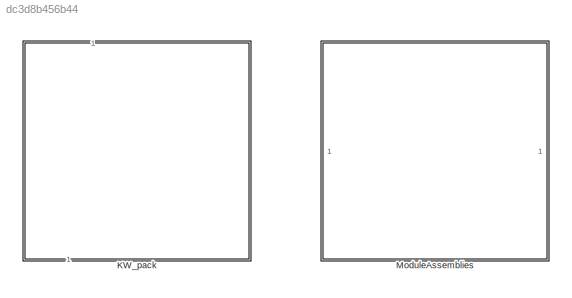
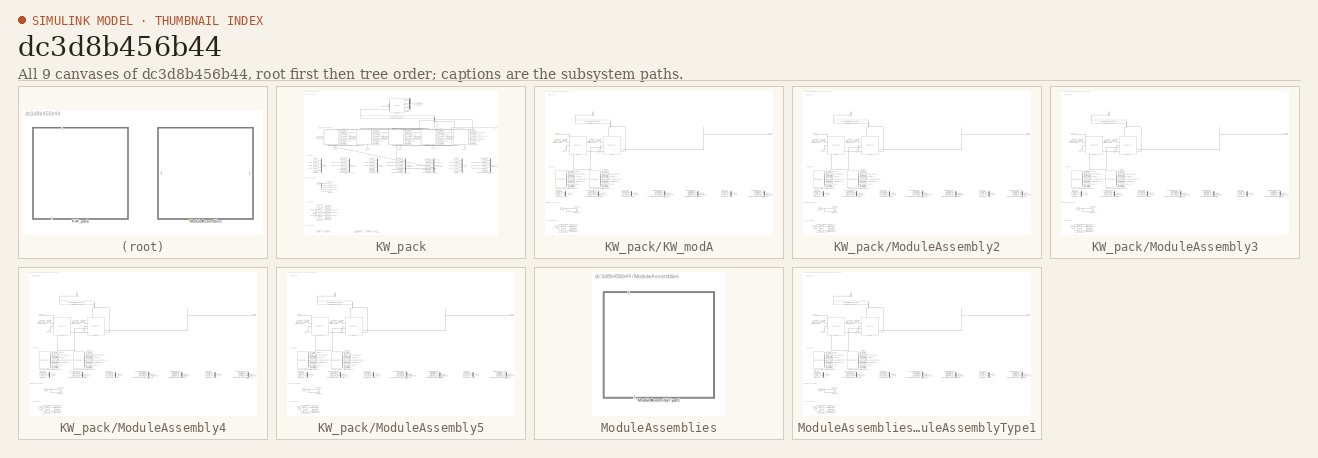
[diagram: thumbnail index - all 9 canvases of the model, root first then tree order]
MODEL slx_dc3d8b456b44
KIND library
CONFIG AbsTol = auto
CONFIG EnableMultiTasking = off
CONFIG FixedStep = auto
CONFIG MaxStep = auto
CONFIG MinStep = auto
CONFIG RelTol = 1e-3
CONFIG SampleTimeConstraint = Unconstrained
CONFIG SolverName = VariableStepAuto
CONFIG StartTime = 0.0
CONFIG StopTime = 10.0
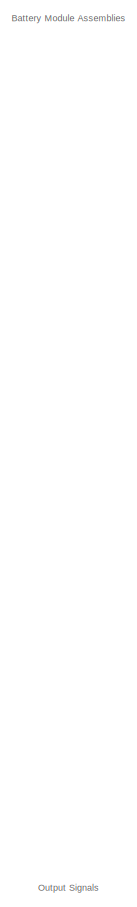
[diagram: KW_pack - part 1/7, top left region]
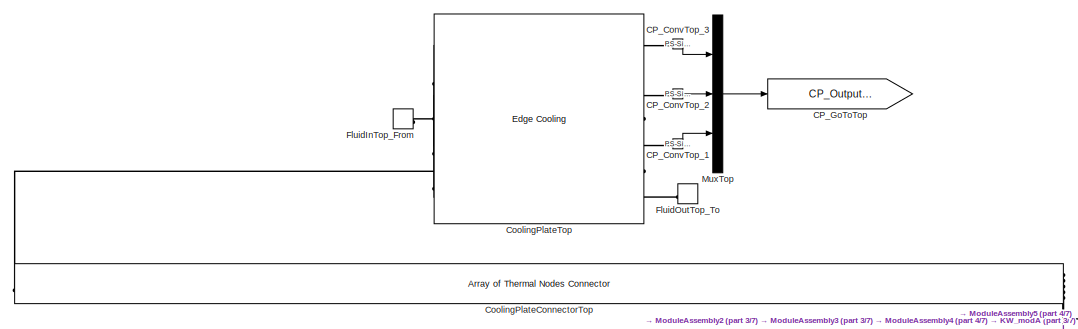
[diagram: KW_pack - part 2/7, top center region]
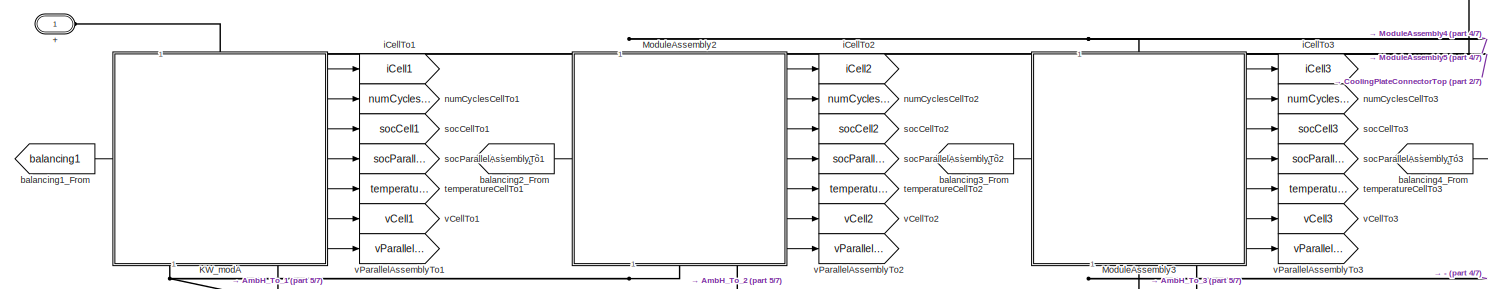
[diagram: KW_pack - part 3/7, top left region]
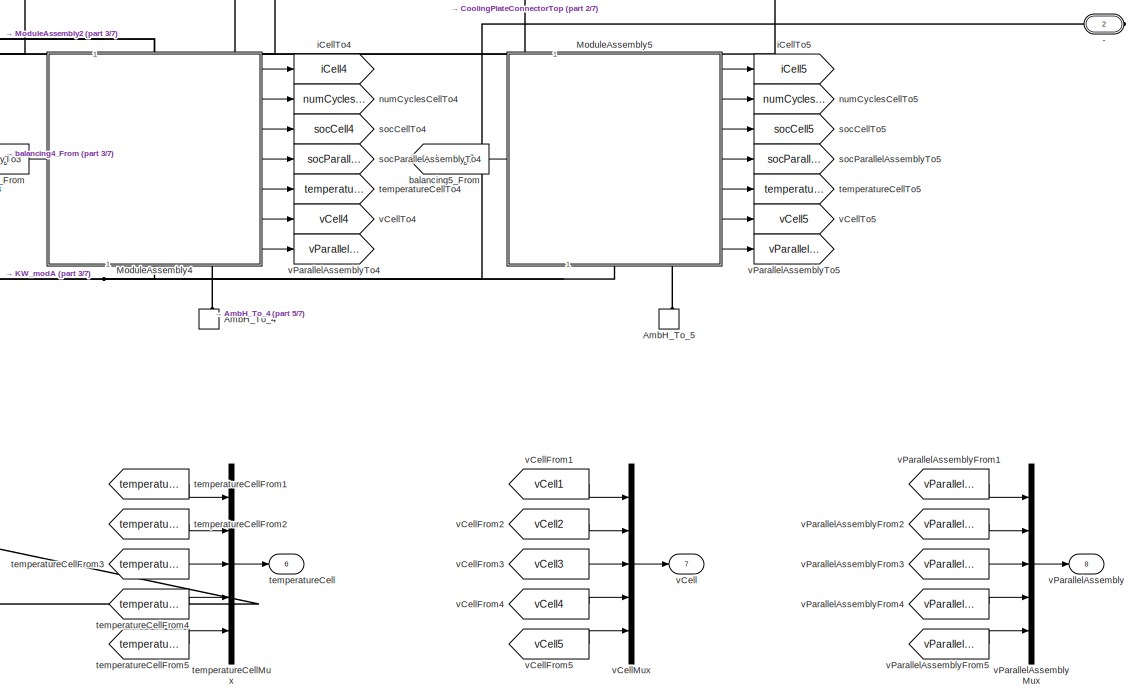
[diagram: KW_pack - part 4/7, middle right region]
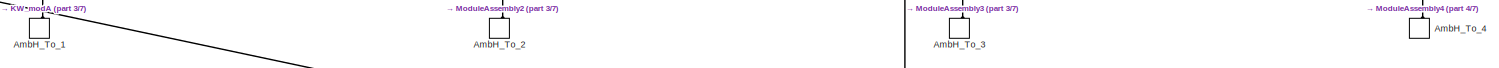
[diagram: KW_pack - part 5/7, central region]
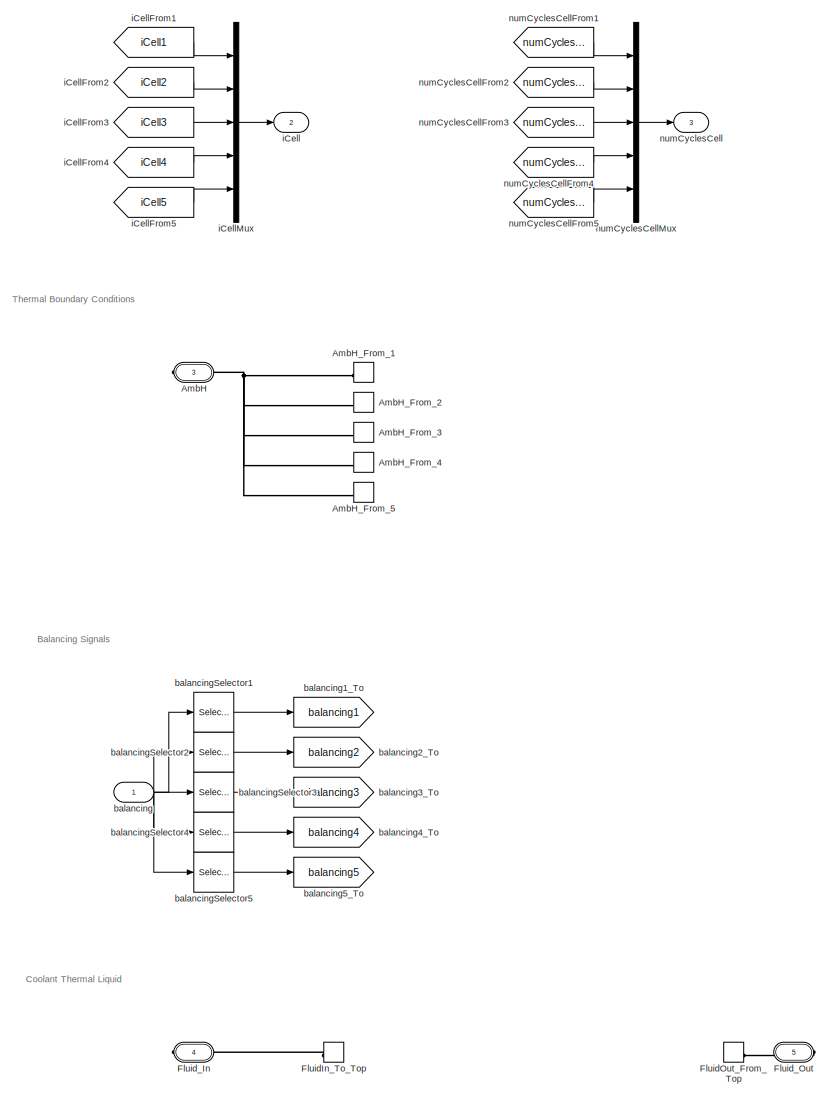
[diagram: KW_pack - part 6/7, bottom left region]
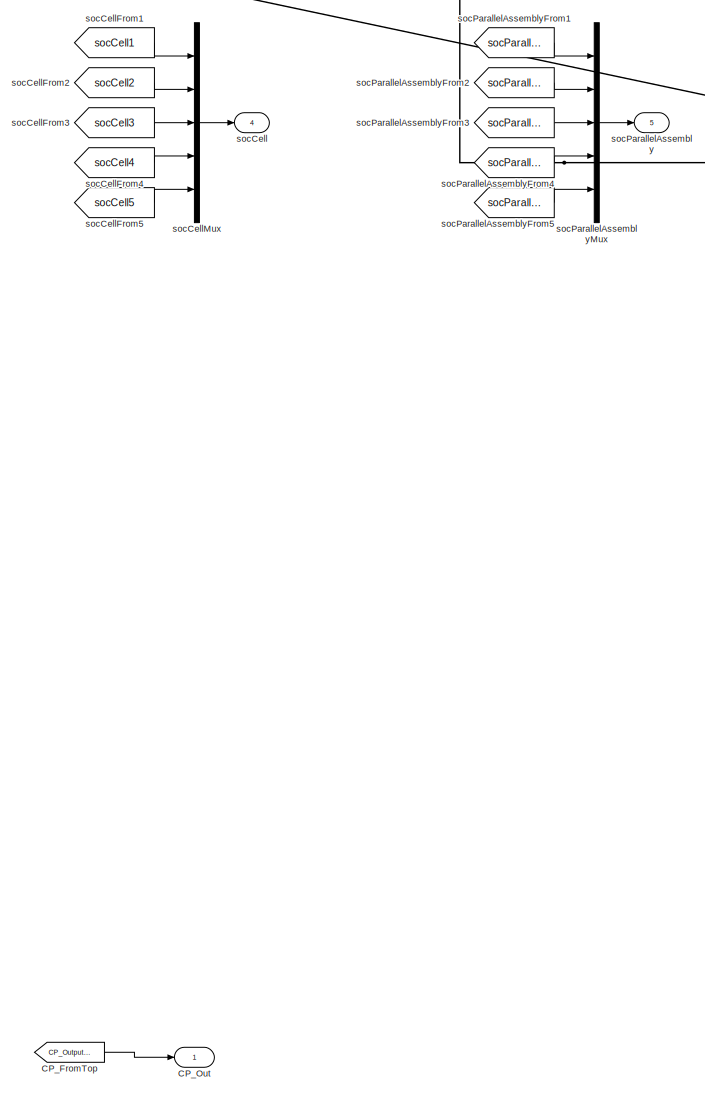
[diagram: KW_pack - part 7/7, bottom center region]
BLOCK [SubSystem] KW_pack
  CopyFcn = battery_builder_rtmsupport('copyfcn',gcbh);
  LoadFcn = battery_builder_rtmsupport('loadfcn',gcbh);
  PortSchema = {"entries":[{"content":{"sides":[{"content":{"connectorIds":["LConn1"]},"type":"ConnectorPlacement.EquallySpacedRectSide","uuid":"3695aeec-7a4b-44d2-b295-3f5b96764e93"},{"content":{"connectorIds":["Out1","RConn1","RConn2","RConn3","RConn4"],"side":"RIGHT"},"type":"ConnectorPlacement.EquallySpacedRectSide","uuid":"66ac44ed-833e-4472-b992-bb5ec077446a"},{"content":{"connectorIds":["In1"],"side":"TOP...<+476ch>
  PreCopyFcn = battery_builder_rtmsupport('precopyfcn',gcbh);
  PreDeleteFcn = battery_builder_rtmsupport('predeletefcn',gcbh);
BLOCK [PMIOPort] KW_pack/+
  Side = Left
BLOCK [PMIOPort] KW_pack/-
  Port = 2
  Side = Right
BLOCK [PMIOPort] KW_pack/AmbH
  ConnectionType = Connection: foundation.thermal.thermal
  Port = 3
  Side = Right
BLOCK [ConnectionLabel] KW_pack/AmbH_From_1
  Label = ambH_1
BLOCK [ConnectionLabel] KW_pack/AmbH_From_2
  Label = ambH_2
BLOCK [ConnectionLabel] KW_pack/AmbH_From_3
  Label = ambH_3
BLOCK [ConnectionLabel] KW_pack/AmbH_From_4
  Label = ambH_4
BLOCK [ConnectionLabel] KW_pack/AmbH_From_5
  Label = ambH_5
BLOCK [ConnectionLabel] KW_pack/AmbH_To_1
  Label = ambH_1
  NameLocation = right
BLOCK [ConnectionLabel] KW_pack/AmbH_To_2
  Label = ambH_2
  NameLocation = right
BLOCK [ConnectionLabel] KW_pack/AmbH_To_3
  Label = ambH_3
  NameLocation = right
BLOCK [ConnectionLabel] KW_pack/AmbH_To_4
  Label = ambH_4
  NameLocation = right
BLOCK [ConnectionLabel] KW_pack/AmbH_To_5
  Label = ambH_5
  NameLocation = right
BLOCK [Reference] KW_pack/CP_ConvTop_1  REF=nesl_utility/PS-Simulink
Converter
  SourceBlock = nesl_utility/PS-Simulink\nConverter
  SourceType = PS-Simulink\nConverter
BLOCK [Reference] KW_pack/CP_ConvTop_2  REF=nesl_utility/PS-Simulink
Converter
  SourceBlock = nesl_utility/PS-Simulink\nConverter
  SourceType = PS-Simulink\nConverter
BLOCK [Reference] KW_pack/CP_ConvTop_3  REF=nesl_utility/PS-Simulink
Converter
  SourceBlock = nesl_utility/PS-Simulink\nConverter
  SourceType = PS-Simulink\nConverter
BLOCK [From] KW_pack/CP_FromTop
  GotoTag = CP_OutputsTop
BLOCK [Goto] KW_pack/CP_GoToTop
  GotoTag = CP_OutputsTop
BLOCK [Outport] KW_pack/CP_Out
BLOCK [Reference] KW_pack/CoolingPlateConnectorTop  REF=batt_lib/Thermal/Array of Thermal
Nodes Connector
  SourceBlock = batt_lib/Thermal/Array of Thermal\nNodes Connector
  SourceType = Array of Thermal\nNodes Connector
BLOCK [Reference] KW_pack/CoolingPlateTop  REF=batt_lib/Thermal/Edge Cooling
  SourceBlock = batt_lib/Thermal/Edge Cooling
  SourceType = Edge Cooling
BLOCK [ConnectionLabel] KW_pack/FluidInTop_From
  Label = FluidIn_To_Top
BLOCK [ConnectionLabel] KW_pack/FluidIn_To_Top
  Label = FluidIn_To_Top
BLOCK [ConnectionLabel] KW_pack/FluidOutTop_To
  Label = FluidOut_From_Top
BLOCK [ConnectionLabel] KW_pack/FluidOut_From_Top
  Label = FluidOut_From_Top
BLOCK [PMIOPort] KW_pack/Fluid_In
  ConnectionType = Connection: foundation.thermal_liquid.thermal_liquid
  Port = 4
  Side = Right
BLOCK [PMIOPort] KW_pack/Fluid_Out
  ConnectionType = Connection: foundation.thermal_liquid.thermal_liquid
  Port = 5
  Side = Right
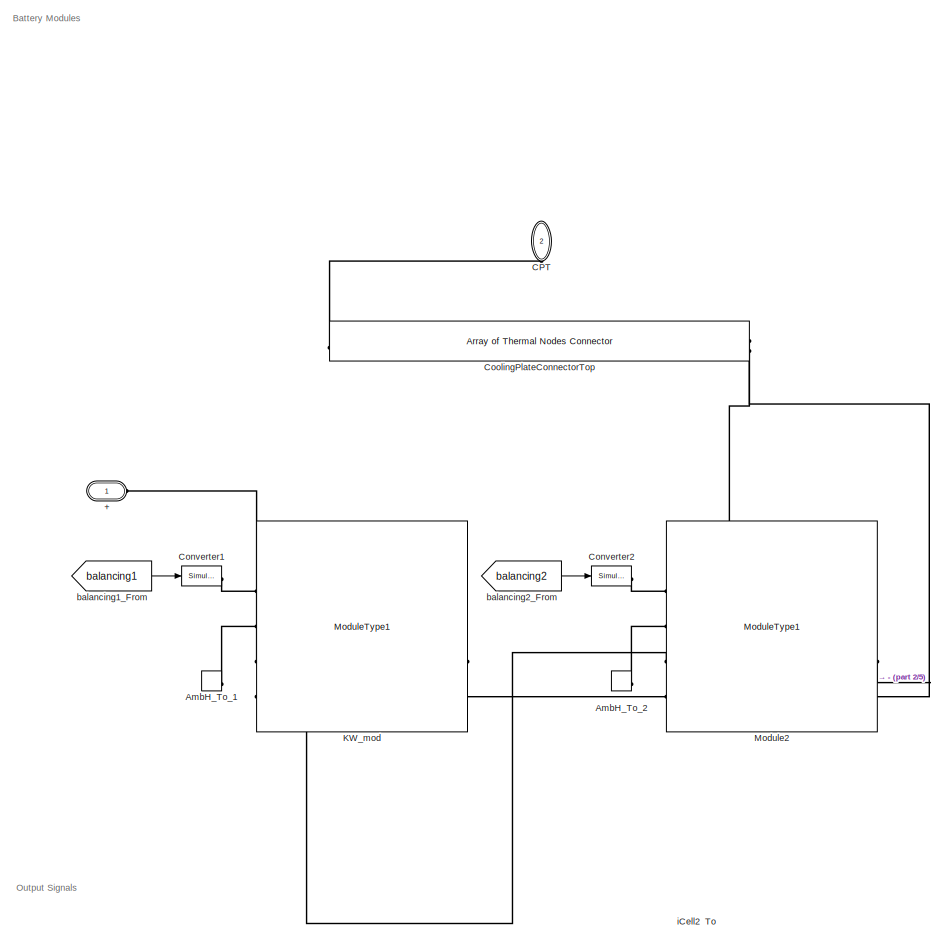
[diagram: KW_pack/KW_modA - part 1/5, top left region]
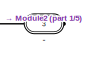
[diagram: KW_pack/KW_modA - part 2/5, top right region]
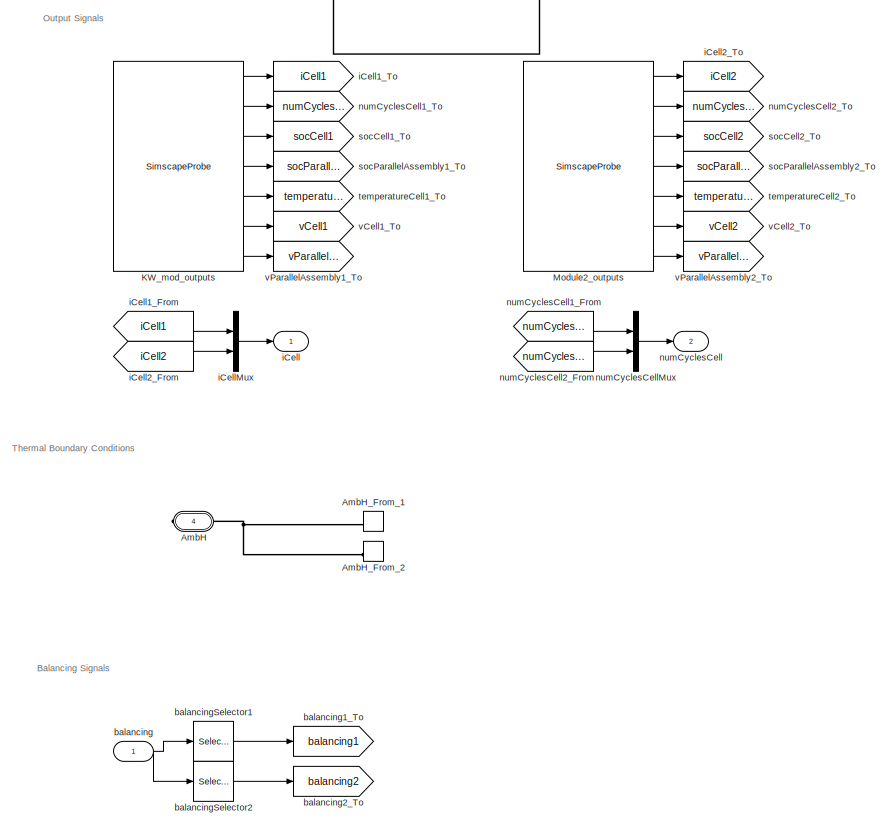
[diagram: KW_pack/KW_modA - part 3/5, bottom left region]
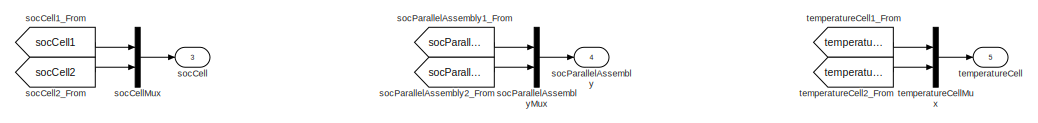
[diagram: KW_pack/KW_modA - part 4/5, bottom center region]
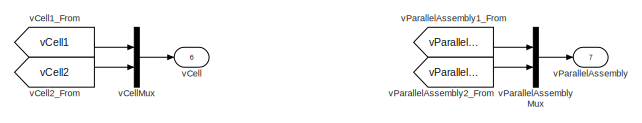
[diagram: KW_pack/KW_modA - part 5/5, bottom right region]
BLOCK [SubSystem] KW_pack/KW_modA
  CopyFcn = battery_builder_rtmsupport('copyfcn',gcbh);
  LoadFcn = battery_builder_rtmsupport('loadfcn',gcbh);
  PortSchema = {"entries":[{"content":{"sides":[{"content":{"connectorIds":["LConn1","LConn2"]},"type":"ConnectorPlacement.EquallySpacedRectSide","uuid":"0d857914-6bd5-4d4d-9580-9383c103a4cc"},{"content":{"connectorIds":["RConn1","RConn2"],"side":"RIGHT"},"type":"ConnectorPlacement.EquallySpacedRectSide","uuid":"a1746dd4-a534-4635-89d3-5caec97b3193"},{"content":{"connectorIds":["In1"],"side":"TOP"},"type":"Conne...<+460ch>  <repeated x6 — deduplicated; at blocks: KW_modA, ModuleAssembly2, ModuleAssembly3, ModuleAssembly4, ModuleAssembly5, ModuleAssemblyType1>
  PreCopyFcn = battery_builder_rtmsupport('precopyfcn',gcbh);
  PreDeleteFcn = battery_builder_rtmsupport('predeletefcn',gcbh);
BLOCK [PMIOPort] KW_pack/KW_modA/+
  Side = Left
BLOCK [PMIOPort] KW_pack/KW_modA/-
  Port = 3
  Side = Right
BLOCK [PMIOPort] KW_pack/KW_modA/AmbH
  ConnectionType = Connection: foundation.thermal.thermal
  Port = 4
  Side = Right
BLOCK [ConnectionLabel] KW_pack/KW_modA/AmbH_From_1
  Label = ambH_1
BLOCK [ConnectionLabel] KW_pack/KW_modA/AmbH_From_2
  Label = ambH_2
BLOCK [ConnectionLabel] KW_pack/KW_modA/AmbH_To_1
  Label = ambH_1
BLOCK [ConnectionLabel] KW_pack/KW_modA/AmbH_To_2
  Label = ambH_2
BLOCK [PMIOPort] KW_pack/KW_modA/CPT
  ConnectionType = Connection: foundation.thermal.thermal
  NameLocation = right
  Port = 2
  Side = Left
BLOCK [Reference] KW_pack/KW_modA/Converter1  REF=nesl_utility/Simulink-PS
Converter
  SourceBlock = nesl_utility/Simulink-PS\nConverter
  SourceType = Simulink-PS\nConverter
BLOCK [Reference] KW_pack/KW_modA/Converter2  REF=nesl_utility/Simulink-PS
Converter
  SourceBlock = nesl_utility/Simulink-PS\nConverter
  SourceType = Simulink-PS\nConverter
BLOCK [Reference] KW_pack/KW_modA/CoolingPlateConnectorTop  REF=batt_lib/Thermal/Array of Thermal
Nodes Connector
  SourceBlock = batt_lib/Thermal/Array of Thermal\nNodes Connector
  SourceType = Array of Thermal\nNodes Connector
BLOCK [Reference] KW_pack/KW_modA/KW_mod  REF=Batteries_lib/Modules/ModuleType1
  SourceBlock = Batteries_lib/Modules/ModuleType1
  SourceType = ModuleType1
BLOCK [SimscapeProbe] KW_pack/KW_modA/KW_mod_outputs
  BoundBlock = 81
  Variables = {"iCell":{"Unit":"A","PortLabel":"iCell","Probing":"ON"},"numCyclesCell":{"Unit":"1","PortLabel":"numCyclesCell","Probing":"ON"},"socCell":{"Unit":"1","PortLabel":"socCell","Probing":"ON"},"socParallelAssembly":{"Unit":"1","PortLabel":"socParallelAssembly","Probing":"ON"},"temperatureCell":{"Unit":"K","PortLabel":"temperatureCell","Probing":"ON"},"vCell":{"Unit":"V","PortLabel":"vCell","Probing":"...<+85ch>  <repeated x12 — deduplicated; at blocks: KW_mod_outputs, Module2_outputs>
BLOCK [Reference] KW_pack/KW_modA/Module2  REF=Batteries_lib/Modules/ModuleType1
  SourceBlock = Batteries_lib/Modules/ModuleType1
  SourceType = ModuleType1
BLOCK [SimscapeProbe] KW_pack/KW_modA/Module2_outputs
  BoundBlock = 83
BLOCK [Inport] KW_pack/KW_modA/balancing
  PortDimensions = 4
BLOCK [From] KW_pack/KW_modA/balancing1_From
  GotoTag = balancing1
BLOCK [Goto] KW_pack/KW_modA/balancing1_To
  GotoTag = balancing1
BLOCK [From] KW_pack/KW_modA/balancing2_From
  GotoTag = balancing2
BLOCK [Goto] KW_pack/KW_modA/balancing2_To
  GotoTag = balancing2
BLOCK [Selector] KW_pack/KW_modA/balancingSelector1
  IndexOptions = Index vector (dialog)
  Indices = [1  2]
  InputPortWidth = 4
  OutputSizes = 1
BLOCK [Selector] KW_pack/KW_modA/balancingSelector2
  IndexOptions = Index vector (dialog)
  Indices = [3  4]
  InputPortWidth = 4
  OutputSizes = 1
BLOCK [Outport] KW_pack/KW_modA/iCell
BLOCK [From] KW_pack/KW_modA/iCell1_From
  GotoTag = iCell1
BLOCK [Goto] KW_pack/KW_modA/iCell1_To
  GotoTag = iCell1
BLOCK [From] KW_pack/KW_modA/iCell2_From
  GotoTag = iCell2
BLOCK [Goto] KW_pack/KW_modA/iCell2_To
  GotoTag = iCell2
BLOCK [Mux] KW_pack/KW_modA/iCellMux
  DisplayOption = bar
  Inputs = 2
BLOCK [Outport] KW_pack/KW_modA/numCyclesCell
  Port = 2
BLOCK [From] KW_pack/KW_modA/numCyclesCell1_From
  GotoTag = numCyclesCell1
BLOCK [Goto] KW_pack/KW_modA/numCyclesCell1_To
  GotoTag = numCyclesCell1
BLOCK [From] KW_pack/KW_modA/numCyclesCell2_From
  GotoTag = numCyclesCell2
BLOCK [Goto] KW_pack/KW_modA/numCyclesCell2_To
  GotoTag = numCyclesCell2
BLOCK [Mux] KW_pack/KW_modA/numCyclesCellMux
  DisplayOption = bar
  Inputs = 2
BLOCK [Outport] KW_pack/KW_modA/socCell
  Port = 3
BLOCK [From] KW_pack/KW_modA/socCell1_From
  GotoTag = socCell1
BLOCK [Goto] KW_pack/KW_modA/socCell1_To
  GotoTag = socCell1
BLOCK [From] KW_pack/KW_modA/socCell2_From
  GotoTag = socCell2
BLOCK [Goto] KW_pack/KW_modA/socCell2_To
  GotoTag = socCell2
BLOCK [Mux] KW_pack/KW_modA/socCellMux
  DisplayOption = bar
  Inputs = 2
BLOCK [Outport] KW_pack/KW_modA/socParallelAssembly
  Port = 4
BLOCK [From] KW_pack/KW_modA/socParallelAssembly1_From
  GotoTag = socParallelAssembly1
BLOCK [Goto] KW_pack/KW_modA/socParallelAssembly1_To
  GotoTag = socParallelAssembly1
BLOCK [From] KW_pack/KW_modA/socParallelAssembly2_From
  GotoTag = socParallelAssembly2
BLOCK [Goto] KW_pack/KW_modA/socParallelAssembly2_To
  GotoTag = socParallelAssembly2
BLOCK [Mux] KW_pack/KW_modA/socParallelAssemblyMux
  DisplayOption = bar
  Inputs = 2
BLOCK [Outport] KW_pack/KW_modA/temperatureCell
  Port = 5
BLOCK [From] KW_pack/KW_modA/temperatureCell1_From
  GotoTag = temperatureCell1
BLOCK [Goto] KW_pack/KW_modA/temperatureCell1_To
  GotoTag = temperatureCell1
BLOCK [From] KW_pack/KW_modA/temperatureCell2_From
  GotoTag = temperatureCell2
BLOCK [Goto] KW_pack/KW_modA/temperatureCell2_To
  GotoTag = temperatureCell2
BLOCK [Mux] KW_pack/KW_modA/temperatureCellMux
  DisplayOption = bar
  Inputs = 2
BLOCK [Outport] KW_pack/KW_modA/vCell
  Port = 6
BLOCK [From] KW_pack/KW_modA/vCell1_From
  GotoTag = vCell1
BLOCK [Goto] KW_pack/KW_modA/vCell1_To
  GotoTag = vCell1
BLOCK [From] KW_pack/KW_modA/vCell2_From
  GotoTag = vCell2
BLOCK [Goto] KW_pack/KW_modA/vCell2_To
  GotoTag = vCell2
BLOCK [Mux] KW_pack/KW_modA/vCellMux
  DisplayOption = bar
  Inputs = 2
BLOCK [Outport] KW_pack/KW_modA/vParallelAssembly
  Port = 7
BLOCK [From] KW_pack/KW_modA/vParallelAssembly1_From
  GotoTag = vParallelAssembly1
BLOCK [Goto] KW_pack/KW_modA/vParallelAssembly1_To
  GotoTag = vParallelAssembly1
BLOCK [From] KW_pack/KW_modA/vParallelAssembly2_From
  GotoTag = vParallelAssembly2
BLOCK [Goto] KW_pack/KW_modA/vParallelAssembly2_To
  GotoTag = vParallelAssembly2
BLOCK [Mux] KW_pack/KW_modA/vParallelAssemblyMux
  DisplayOption = bar
  Inputs = 2
BLOCK [SubSystem] KW_pack/ModuleAssembly2
  CopyFcn = battery_builder_rtmsupport('copyfcn',gcbh);
  LoadFcn = battery_builder_rtmsupport('loadfcn',gcbh);
  PreCopyFcn = battery_builder_rtmsupport('precopyfcn',gcbh);
  PreDeleteFcn = battery_builder_rtmsupport('predeletefcn',gcbh);
BLOCK [PMIOPort] KW_pack/ModuleAssembly2/+
  Side = Left
BLOCK [PMIOPort] KW_pack/ModuleAssembly2/-
  Port = 3
  Side = Right
BLOCK [PMIOPort] KW_pack/ModuleAssembly2/AmbH
  ConnectionType = Connection: foundation.thermal.thermal
  Port = 4
  Side = Right
BLOCK [ConnectionLabel] KW_pack/ModuleAssembly2/AmbH_From_1
  Label = ambH_1
BLOCK [ConnectionLabel] KW_pack/ModuleAssembly2/AmbH_From_2
  Label = ambH_2
BLOCK [ConnectionLabel] KW_pack/ModuleAssembly2/AmbH_To_1
  Label = ambH_1
BLOCK [ConnectionLabel] KW_pack/ModuleAssembly2/AmbH_To_2
  Label = ambH_2
BLOCK [PMIOPort] KW_pack/ModuleAssembly2/CPT
  ConnectionType = Connection: foundation.thermal.thermal
  NameLocation = right
  Port = 2
  Side = Left
BLOCK [Reference] KW_pack/ModuleAssembly2/Converter1  REF=nesl_utility/Simulink-PS
Converter
  SourceBlock = nesl_utility/Simulink-PS\nConverter
  SourceType = Simulink-PS\nConverter
BLOCK [Reference] KW_pack/ModuleAssembly2/Converter2  REF=nesl_utility/Simulink-PS
Converter
  SourceBlock = nesl_utility/Simulink-PS\nConverter
  SourceType = Simulink-PS\nConverter
BLOCK [Reference] KW_pack/ModuleAssembly2/CoolingPlateConnectorTop  REF=batt_lib/Thermal/Array of Thermal
Nodes Connector
  SourceBlock = batt_lib/Thermal/Array of Thermal\nNodes Connector
  SourceType = Array of Thermal\nNodes Connector
BLOCK [Reference] KW_pack/ModuleAssembly2/KW_mod  REF=Batteries_lib/Modules/ModuleType1
  SourceBlock = Batteries_lib/Modules/ModuleType1
  SourceType = ModuleType1
BLOCK [SimscapeProbe] KW_pack/ModuleAssembly2/KW_mod_outputs
  BoundBlock = 150
BLOCK [Reference] KW_pack/ModuleAssembly2/Module2  REF=Batteries_lib/Modules/ModuleType1
  SourceBlock = Batteries_lib/Modules/ModuleType1
  SourceType = ModuleType1
BLOCK [SimscapeProbe] KW_pack/ModuleAssembly2/Module2_outputs
  BoundBlock = 152
BLOCK [Inport] KW_pack/ModuleAssembly2/balancing
  PortDimensions = 4
BLOCK [From] KW_pack/ModuleAssembly2/balancing1_From
  GotoTag = balancing1
BLOCK [Goto] KW_pack/ModuleAssembly2/balancing1_To
  GotoTag = balancing1
BLOCK [From] KW_pack/ModuleAssembly2/balancing2_From
  GotoTag = balancing2
BLOCK [Goto] KW_pack/ModuleAssembly2/balancing2_To
  GotoTag = balancing2
BLOCK [Selector] KW_pack/ModuleAssembly2/balancingSelector1
  IndexOptions = Index vector (dialog)
  Indices = [1  2]
  InputPortWidth = 4
  OutputSizes = 1
BLOCK [Selector] KW_pack/ModuleAssembly2/balancingSelector2
  IndexOptions = Index vector (dialog)
  Indices = [3  4]
  InputPortWidth = 4
  OutputSizes = 1
BLOCK [Outport] KW_pack/ModuleAssembly2/iCell
BLOCK [From] KW_pack/ModuleAssembly2/iCell1_From
  GotoTag = iCell1
BLOCK [Goto] KW_pack/ModuleAssembly2/iCell1_To
  GotoTag = iCell1
BLOCK [From] KW_pack/ModuleAssembly2/iCell2_From
  GotoTag = iCell2
BLOCK [Goto] KW_pack/ModuleAssembly2/iCell2_To
  GotoTag = iCell2
BLOCK [Mux] KW_pack/ModuleAssembly2/iCellMux
  DisplayOption = bar
  Inputs = 2
BLOCK [Outport] KW_pack/ModuleAssembly2/numCyclesCell
  Port = 2
BLOCK [From] KW_pack/ModuleAssembly2/numCyclesCell1_From
  GotoTag = numCyclesCell1
BLOCK [Goto] KW_pack/ModuleAssembly2/numCyclesCell1_To
  GotoTag = numCyclesCell1
BLOCK [From] KW_pack/ModuleAssembly2/numCyclesCell2_From
  GotoTag = numCyclesCell2
BLOCK [Goto] KW_pack/ModuleAssembly2/numCyclesCell2_To
  GotoTag = numCyclesCell2
BLOCK [Mux] KW_pack/ModuleAssembly2/numCyclesCellMux
  DisplayOption = bar
  Inputs = 2
BLOCK [Outport] KW_pack/ModuleAssembly2/socCell
  Port = 3
BLOCK [From] KW_pack/ModuleAssembly2/socCell1_From
  GotoTag = socCell1
BLOCK [Goto] KW_pack/ModuleAssembly2/socCell1_To
  GotoTag = socCell1
BLOCK [From] KW_pack/ModuleAssembly2/socCell2_From
  GotoTag = socCell2
BLOCK [Goto] KW_pack/ModuleAssembly2/socCell2_To
  GotoTag = socCell2
BLOCK [Mux] KW_pack/ModuleAssembly2/socCellMux
  DisplayOption = bar
  Inputs = 2
BLOCK [Outport] KW_pack/ModuleAssembly2/socParallelAssembly
  Port = 4
BLOCK [From] KW_pack/ModuleAssembly2/socParallelAssembly1_From
  GotoTag = socParallelAssembly1
BLOCK [Goto] KW_pack/ModuleAssembly2/socParallelAssembly1_To
  GotoTag = socParallelAssembly1
BLOCK [From] KW_pack/ModuleAssembly2/socParallelAssembly2_From
  GotoTag = socParallelAssembly2
BLOCK [Goto] KW_pack/ModuleAssembly2/socParallelAssembly2_To
  GotoTag = socParallelAssembly2
BLOCK [Mux] KW_pack/ModuleAssembly2/socParallelAssemblyMux
  DisplayOption = bar
  Inputs = 2
BLOCK [Outport] KW_pack/ModuleAssembly2/temperatureCell
  Port = 5
BLOCK [From] KW_pack/ModuleAssembly2/temperatureCell1_From
  GotoTag = temperatureCell1
BLOCK [Goto] KW_pack/ModuleAssembly2/temperatureCell1_To
  GotoTag = temperatureCell1
BLOCK [From] KW_pack/ModuleAssembly2/temperatureCell2_From
  GotoTag = temperatureCell2
BLOCK [Goto] KW_pack/ModuleAssembly2/temperatureCell2_To
  GotoTag = temperatureCell2
BLOCK [Mux] KW_pack/ModuleAssembly2/temperatureCellMux
  DisplayOption = bar
  Inputs = 2
BLOCK [Outport] KW_pack/ModuleAssembly2/vCell
  Port = 6
BLOCK [From] KW_pack/ModuleAssembly2/vCell1_From
  GotoTag = vCell1
BLOCK [Goto] KW_pack/ModuleAssembly2/vCell1_To
  GotoTag = vCell1
BLOCK [From] KW_pack/ModuleAssembly2/vCell2_From
  GotoTag = vCell2
BLOCK [Goto] KW_pack/ModuleAssembly2/vCell2_To
  GotoTag = vCell2
BLOCK [Mux] KW_pack/ModuleAssembly2/vCellMux
  DisplayOption = bar
  Inputs = 2
BLOCK [Outport] KW_pack/ModuleAssembly2/vParallelAssembly
  Port = 7
BLOCK [From] KW_pack/ModuleAssembly2/vParallelAssembly1_From
  GotoTag = vParallelAssembly1
BLOCK [Goto] KW_pack/ModuleAssembly2/vParallelAssembly1_To
  GotoTag = vParallelAssembly1
BLOCK [From] KW_pack/ModuleAssembly2/vParallelAssembly2_From
  GotoTag = vParallelAssembly2
BLOCK [Goto] KW_pack/ModuleAssembly2/vParallelAssembly2_To
  GotoTag = vParallelAssembly2
BLOCK [Mux] KW_pack/ModuleAssembly2/vParallelAssemblyMux
  DisplayOption = bar
  Inputs = 2
BLOCK [SubSystem] KW_pack/ModuleAssembly3
  CopyFcn = battery_builder_rtmsupport('copyfcn',gcbh);
  LoadFcn = battery_builder_rtmsupport('loadfcn',gcbh);
  PreCopyFcn = battery_builder_rtmsupport('precopyfcn',gcbh);
  PreDeleteFcn = battery_builder_rtmsupport('predeletefcn',gcbh);
BLOCK [PMIOPort] KW_pack/ModuleAssembly3/+
  Side = Left
BLOCK [PMIOPort] KW_pack/ModuleAssembly3/-
  Port = 3
  Side = Right
BLOCK [PMIOPort] KW_pack/ModuleAssembly3/AmbH
  ConnectionType = Connection: foundation.thermal.thermal
  Port = 4
  Side = Right
BLOCK [ConnectionLabel] KW_pack/ModuleAssembly3/AmbH_From_1
  Label = ambH_1
BLOCK [ConnectionLabel] KW_pack/ModuleAssembly3/AmbH_From_2
  Label = ambH_2
BLOCK [ConnectionLabel] KW_pack/ModuleAssembly3/AmbH_To_1
  Label = ambH_1
BLOCK [ConnectionLabel] KW_pack/ModuleAssembly3/AmbH_To_2
  Label = ambH_2
BLOCK [PMIOPort] KW_pack/ModuleAssembly3/CPT
  ConnectionType = Connection: foundation.thermal.thermal
  NameLocation = right
  Port = 2
  Side = Left
BLOCK [Reference] KW_pack/ModuleAssembly3/Converter1  REF=nesl_utility/Simulink-PS
Converter
  SourceBlock = nesl_utility/Simulink-PS\nConverter
  SourceType = Simulink-PS\nConverter
BLOCK [Reference] KW_pack/ModuleAssembly3/Converter2  REF=nesl_utility/Simulink-PS
Converter
  SourceBlock = nesl_utility/Simulink-PS\nConverter
  SourceType = Simulink-PS\nConverter
BLOCK [Reference] KW_pack/ModuleAssembly3/CoolingPlateConnectorTop  REF=batt_lib/Thermal/Array of Thermal
Nodes Connector
  SourceBlock = batt_lib/Thermal/Array of Thermal\nNodes Connector
  SourceType = Array of Thermal\nNodes Connector
BLOCK [Reference] KW_pack/ModuleAssembly3/KW_mod  REF=Batteries_lib/Modules/ModuleType1
  SourceBlock = Batteries_lib/Modules/ModuleType1
  SourceType = ModuleType1
BLOCK [SimscapeProbe] KW_pack/ModuleAssembly3/KW_mod_outputs
  BoundBlock = 219
BLOCK [Reference] KW_pack/ModuleAssembly3/Module2  REF=Batteries_lib/Modules/ModuleType1
  SourceBlock = Batteries_lib/Modules/ModuleType1
  SourceType = ModuleType1
BLOCK [SimscapeProbe] KW_pack/ModuleAssembly3/Module2_outputs
  BoundBlock = 221
BLOCK [Inport] KW_pack/ModuleAssembly3/balancing
  PortDimensions = 4
BLOCK [From] KW_pack/ModuleAssembly3/balancing1_From
  GotoTag = balancing1
BLOCK [Goto] KW_pack/ModuleAssembly3/balancing1_To
  GotoTag = balancing1
BLOCK [From] KW_pack/ModuleAssembly3/balancing2_From
  GotoTag = balancing2
BLOCK [Goto] KW_pack/ModuleAssembly3/balancing2_To
  GotoTag = balancing2
BLOCK [Selector] KW_pack/ModuleAssembly3/balancingSelector1
  IndexOptions = Index vector (dialog)
  Indices = [1  2]
  InputPortWidth = 4
  OutputSizes = 1
BLOCK [Selector] KW_pack/ModuleAssembly3/balancingSelector2
  IndexOptions = Index vector (dialog)
  Indices = [3  4]
  InputPortWidth = 4
  OutputSizes = 1
BLOCK [Outport] KW_pack/ModuleAssembly3/iCell
BLOCK [From] KW_pack/ModuleAssembly3/iCell1_From
  GotoTag = iCell1
BLOCK [Goto] KW_pack/ModuleAssembly3/iCell1_To
  GotoTag = iCell1
BLOCK [From] KW_pack/ModuleAssembly3/iCell2_From
  GotoTag = iCell2
BLOCK [Goto] KW_pack/ModuleAssembly3/iCell2_To
  GotoTag = iCell2
BLOCK [Mux] KW_pack/ModuleAssembly3/iCellMux
  DisplayOption = bar
  Inputs = 2
BLOCK [Outport] KW_pack/ModuleAssembly3/numCyclesCell
  Port = 2
BLOCK [From] KW_pack/ModuleAssembly3/numCyclesCell1_From
  GotoTag = numCyclesCell1
BLOCK [Goto] KW_pack/ModuleAssembly3/numCyclesCell1_To
  GotoTag = numCyclesCell1
BLOCK [From] KW_pack/ModuleAssembly3/numCyclesCell2_From
  GotoTag = numCyclesCell2
BLOCK [Goto] KW_pack/ModuleAssembly3/numCyclesCell2_To
  GotoTag = numCyclesCell2
BLOCK [Mux] KW_pack/ModuleAssembly3/numCyclesCellMux
  DisplayOption = bar
  Inputs = 2
BLOCK [Outport] KW_pack/ModuleAssembly3/socCell
  Port = 3
BLOCK [From] KW_pack/ModuleAssembly3/socCell1_From
  GotoTag = socCell1
BLOCK [Goto] KW_pack/ModuleAssembly3/socCell1_To
  GotoTag = socCell1
BLOCK [From] KW_pack/ModuleAssembly3/socCell2_From
  GotoTag = socCell2
BLOCK [Goto] KW_pack/ModuleAssembly3/socCell2_To
  GotoTag = socCell2
BLOCK [Mux] KW_pack/ModuleAssembly3/socCellMux
  DisplayOption = bar
  Inputs = 2
BLOCK [Outport] KW_pack/ModuleAssembly3/socParallelAssembly
  Port = 4
BLOCK [From] KW_pack/ModuleAssembly3/socParallelAssembly1_From
  GotoTag = socParallelAssembly1
BLOCK [Goto] KW_pack/ModuleAssembly3/socParallelAssembly1_To
  GotoTag = socParallelAssembly1
BLOCK [From] KW_pack/ModuleAssembly3/socParallelAssembly2_From
  GotoTag = socParallelAssembly2
BLOCK [Goto] KW_pack/ModuleAssembly3/socParallelAssembly2_To
  GotoTag = socParallelAssembly2
BLOCK [Mux] KW_pack/ModuleAssembly3/socParallelAssemblyMux
  DisplayOption = bar
  Inputs = 2
BLOCK [Outport] KW_pack/ModuleAssembly3/temperatureCell
  Port = 5
BLOCK [From] KW_pack/ModuleAssembly3/temperatureCell1_From
  GotoTag = temperatureCell1
BLOCK [Goto] KW_pack/ModuleAssembly3/temperatureCell1_To
  GotoTag = temperatureCell1
BLOCK [From] KW_pack/ModuleAssembly3/temperatureCell2_From
  GotoTag = temperatureCell2
BLOCK [Goto] KW_pack/ModuleAssembly3/temperatureCell2_To
  GotoTag = temperatureCell2
BLOCK [Mux] KW_pack/ModuleAssembly3/temperatureCellMux
  DisplayOption = bar
  Inputs = 2
BLOCK [Outport] KW_pack/ModuleAssembly3/vCell
  Port = 6
BLOCK [From] KW_pack/ModuleAssembly3/vCell1_From
  GotoTag = vCell1
BLOCK [Goto] KW_pack/ModuleAssembly3/vCell1_To
  GotoTag = vCell1
BLOCK [From] KW_pack/ModuleAssembly3/vCell2_From
  GotoTag = vCell2
BLOCK [Goto] KW_pack/ModuleAssembly3/vCell2_To
  GotoTag = vCell2
BLOCK [Mux] KW_pack/ModuleAssembly3/vCellMux
  DisplayOption = bar
  Inputs = 2
BLOCK [Outport] KW_pack/ModuleAssembly3/vParallelAssembly
  Port = 7
BLOCK [From] KW_pack/ModuleAssembly3/vParallelAssembly1_From
  GotoTag = vParallelAssembly1
BLOCK [Goto] KW_pack/ModuleAssembly3/vParallelAssembly1_To
  GotoTag = vParallelAssembly1
BLOCK [From] KW_pack/ModuleAssembly3/vParallelAssembly2_From
  GotoTag = vParallelAssembly2
BLOCK [Goto] KW_pack/ModuleAssembly3/vParallelAssembly2_To
  GotoTag = vParallelAssembly2
BLOCK [Mux] KW_pack/ModuleAssembly3/vParallelAssemblyMux
  DisplayOption = bar
  Inputs = 2
BLOCK [SubSystem] KW_pack/ModuleAssembly4
  CopyFcn = battery_builder_rtmsupport('copyfcn',gcbh);
  LoadFcn = battery_builder_rtmsupport('loadfcn',gcbh);
  PreCopyFcn = battery_builder_rtmsupport('precopyfcn',gcbh);
  PreDeleteFcn = battery_builder_rtmsupport('predeletefcn',gcbh);
BLOCK [PMIOPort] KW_pack/ModuleAssembly4/+
  Side = Left
BLOCK [PMIOPort] KW_pack/ModuleAssembly4/-
  Port = 3
  Side = Right
BLOCK [PMIOPort] KW_pack/ModuleAssembly4/AmbH
  ConnectionType = Connection: foundation.thermal.thermal
  Port = 4
  Side = Right
BLOCK [ConnectionLabel] KW_pack/ModuleAssembly4/AmbH_From_1
  Label = ambH_1
BLOCK [ConnectionLabel] KW_pack/ModuleAssembly4/AmbH_From_2
  Label = ambH_2
BLOCK [ConnectionLabel] KW_pack/ModuleAssembly4/AmbH_To_1
  Label = ambH_1
BLOCK [ConnectionLabel] KW_pack/ModuleAssembly4/AmbH_To_2
  Label = ambH_2
BLOCK [PMIOPort] KW_pack/ModuleAssembly4/CPT
  ConnectionType = Connection: foundation.thermal.thermal
  NameLocation = right
  Port = 2
  Side = Left
BLOCK [Reference] KW_pack/ModuleAssembly4/Converter1  REF=nesl_utility/Simulink-PS
Converter
  SourceBlock = nesl_utility/Simulink-PS\nConverter
  SourceType = Simulink-PS\nConverter
BLOCK [Reference] KW_pack/ModuleAssembly4/Converter2  REF=nesl_utility/Simulink-PS
Converter
  SourceBlock = nesl_utility/Simulink-PS\nConverter
  SourceType = Simulink-PS\nConverter
BLOCK [Reference] KW_pack/ModuleAssembly4/CoolingPlateConnectorTop  REF=batt_lib/Thermal/Array of Thermal
Nodes Connector
  SourceBlock = batt_lib/Thermal/Array of Thermal\nNodes Connector
  SourceType = Array of Thermal\nNodes Connector
BLOCK [Reference] KW_pack/ModuleAssembly4/KW_mod  REF=Batteries_lib/Modules/ModuleType1
  SourceBlock = Batteries_lib/Modules/ModuleType1
  SourceType = ModuleType1
BLOCK [SimscapeProbe] KW_pack/ModuleAssembly4/KW_mod_outputs
  BoundBlock = 288
BLOCK [Reference] KW_pack/ModuleAssembly4/Module2  REF=Batteries_lib/Modules/ModuleType1
  SourceBlock = Batteries_lib/Modules/ModuleType1
  SourceType = ModuleType1
BLOCK [SimscapeProbe] KW_pack/ModuleAssembly4/Module2_outputs
  BoundBlock = 290
BLOCK [Inport] KW_pack/ModuleAssembly4/balancing
  PortDimensions = 4
BLOCK [From] KW_pack/ModuleAssembly4/balancing1_From
  GotoTag = balancing1
BLOCK [Goto] KW_pack/ModuleAssembly4/balancing1_To
  GotoTag = balancing1
BLOCK [From] KW_pack/ModuleAssembly4/balancing2_From
  GotoTag = balancing2
BLOCK [Goto] KW_pack/ModuleAssembly4/balancing2_To
  GotoTag = balancing2
BLOCK [Selector] KW_pack/ModuleAssembly4/balancingSelector1
  IndexOptions = Index vector (dialog)
  Indices = [1  2]
  InputPortWidth = 4
  OutputSizes = 1
BLOCK [Selector] KW_pack/ModuleAssembly4/balancingSelector2
  IndexOptions = Index vector (dialog)
  Indices = [3  4]
  InputPortWidth = 4
  OutputSizes = 1
BLOCK [Outport] KW_pack/ModuleAssembly4/iCell
BLOCK [From] KW_pack/ModuleAssembly4/iCell1_From
  GotoTag = iCell1
BLOCK [Goto] KW_pack/ModuleAssembly4/iCell1_To
  GotoTag = iCell1
BLOCK [From] KW_pack/ModuleAssembly4/iCell2_From
  GotoTag = iCell2
BLOCK [Goto] KW_pack/ModuleAssembly4/iCell2_To
  GotoTag = iCell2
BLOCK [Mux] KW_pack/ModuleAssembly4/iCellMux
  DisplayOption = bar
  Inputs = 2
BLOCK [Outport] KW_pack/ModuleAssembly4/numCyclesCell
  Port = 2
BLOCK [From] KW_pack/ModuleAssembly4/numCyclesCell1_From
  GotoTag = numCyclesCell1
BLOCK [Goto] KW_pack/ModuleAssembly4/numCyclesCell1_To
  GotoTag = numCyclesCell1
BLOCK [From] KW_pack/ModuleAssembly4/numCyclesCell2_From
  GotoTag = numCyclesCell2
BLOCK [Goto] KW_pack/ModuleAssembly4/numCyclesCell2_To
  GotoTag = numCyclesCell2
BLOCK [Mux] KW_pack/ModuleAssembly4/numCyclesCellMux
  DisplayOption = bar
  Inputs = 2
BLOCK [Outport] KW_pack/ModuleAssembly4/socCell
  Port = 3
BLOCK [From] KW_pack/ModuleAssembly4/socCell1_From
  GotoTag = socCell1
BLOCK [Goto] KW_pack/ModuleAssembly4/socCell1_To
  GotoTag = socCell1
BLOCK [From] KW_pack/ModuleAssembly4/socCell2_From
  GotoTag = socCell2
BLOCK [Goto] KW_pack/ModuleAssembly4/socCell2_To
  GotoTag = socCell2
BLOCK [Mux] KW_pack/ModuleAssembly4/socCellMux
  DisplayOption = bar
  Inputs = 2
BLOCK [Outport] KW_pack/ModuleAssembly4/socParallelAssembly
  Port = 4
BLOCK [From] KW_pack/ModuleAssembly4/socParallelAssembly1_From
  GotoTag = socParallelAssembly1
BLOCK [Goto] KW_pack/ModuleAssembly4/socParallelAssembly1_To
  GotoTag = socParallelAssembly1
BLOCK [From] KW_pack/ModuleAssembly4/socParallelAssembly2_From
  GotoTag = socParallelAssembly2
BLOCK [Goto] KW_pack/ModuleAssembly4/socParallelAssembly2_To
  GotoTag = socParallelAssembly2
BLOCK [Mux] KW_pack/ModuleAssembly4/socParallelAssemblyMux
  DisplayOption = bar
  Inputs = 2
BLOCK [Outport] KW_pack/ModuleAssembly4/temperatureCell
  Port = 5
BLOCK [From] KW_pack/ModuleAssembly4/temperatureCell1_From
  GotoTag = temperatureCell1
BLOCK [Goto] KW_pack/ModuleAssembly4/temperatureCell1_To
  GotoTag = temperatureCell1
BLOCK [From] KW_pack/ModuleAssembly4/temperatureCell2_From
  GotoTag = temperatureCell2
BLOCK [Goto] KW_pack/ModuleAssembly4/temperatureCell2_To
  GotoTag = temperatureCell2
BLOCK [Mux] KW_pack/ModuleAssembly4/temperatureCellMux
  DisplayOption = bar
  Inputs = 2
BLOCK [Outport] KW_pack/ModuleAssembly4/vCell
  Port = 6
BLOCK [From] KW_pack/ModuleAssembly4/vCell1_From
  GotoTag = vCell1
BLOCK [Goto] KW_pack/ModuleAssembly4/vCell1_To
  GotoTag = vCell1
BLOCK [From] KW_pack/ModuleAssembly4/vCell2_From
  GotoTag = vCell2
BLOCK [Goto] KW_pack/ModuleAssembly4/vCell2_To
  GotoTag = vCell2
BLOCK [Mux] KW_pack/ModuleAssembly4/vCellMux
  DisplayOption = bar
  Inputs = 2
BLOCK [Outport] KW_pack/ModuleAssembly4/vParallelAssembly
  Port = 7
BLOCK [From] KW_pack/ModuleAssembly4/vParallelAssembly1_From
  GotoTag = vParallelAssembly1
BLOCK [Goto] KW_pack/ModuleAssembly4/vParallelAssembly1_To
  GotoTag = vParallelAssembly1
BLOCK [From] KW_pack/ModuleAssembly4/vParallelAssembly2_From
  GotoTag = vParallelAssembly2
BLOCK [Goto] KW_pack/ModuleAssembly4/vParallelAssembly2_To
  GotoTag = vParallelAssembly2
BLOCK [Mux] KW_pack/ModuleAssembly4/vParallelAssemblyMux
  DisplayOption = bar
  Inputs = 2
BLOCK [SubSystem] KW_pack/ModuleAssembly5
  CopyFcn = battery_builder_rtmsupport('copyfcn',gcbh);
  LoadFcn = battery_builder_rtmsupport('loadfcn',gcbh);
  PreCopyFcn = battery_builder_rtmsupport('precopyfcn',gcbh);
  PreDeleteFcn = battery_builder_rtmsupport('predeletefcn',gcbh);
BLOCK [PMIOPort] KW_pack/ModuleAssembly5/+
  Side = Left
BLOCK [PMIOPort] KW_pack/ModuleAssembly5/-
  Port = 3
  Side = Right
BLOCK [PMIOPort] KW_pack/ModuleAssembly5/AmbH
  ConnectionType = Connection: foundation.thermal.thermal
  Port = 4
  Side = Right
BLOCK [ConnectionLabel] KW_pack/ModuleAssembly5/AmbH_From_1
  Label = ambH_1
BLOCK [ConnectionLabel] KW_pack/ModuleAssembly5/AmbH_From_2
  Label = ambH_2
BLOCK [ConnectionLabel] KW_pack/ModuleAssembly5/AmbH_To_1
  Label = ambH_1
BLOCK [ConnectionLabel] KW_pack/ModuleAssembly5/AmbH_To_2
  Label = ambH_2
BLOCK [PMIOPort] KW_pack/ModuleAssembly5/CPT
  ConnectionType = Connection: foundation.thermal.thermal
  NameLocation = right
  Port = 2
  Side = Left
BLOCK [Reference] KW_pack/ModuleAssembly5/Converter1  REF=nesl_utility/Simulink-PS
Converter
  SourceBlock = nesl_utility/Simulink-PS\nConverter
  SourceType = Simulink-PS\nConverter
BLOCK [Reference] KW_pack/ModuleAssembly5/Converter2  REF=nesl_utility/Simulink-PS
Converter
  SourceBlock = nesl_utility/Simulink-PS\nConverter
  SourceType = Simulink-PS\nConverter
BLOCK [Reference] KW_pack/ModuleAssembly5/CoolingPlateConnectorTop  REF=batt_lib/Thermal/Array of Thermal
Nodes Connector
  SourceBlock = batt_lib/Thermal/Array of Thermal\nNodes Connector
  SourceType = Array of Thermal\nNodes Connector
BLOCK [Reference] KW_pack/ModuleAssembly5/KW_mod  REF=Batteries_lib/Modules/ModuleType1
  SourceBlock = Batteries_lib/Modules/ModuleType1
  SourceType = ModuleType1
BLOCK [SimscapeProbe] KW_pack/ModuleAssembly5/KW_mod_outputs
  BoundBlock = 357
BLOCK [Reference] KW_pack/ModuleAssembly5/Module2  REF=Batteries_lib/Modules/ModuleType1
  SourceBlock = Batteries_lib/Modules/ModuleType1
  SourceType = ModuleType1
BLOCK [SimscapeProbe] KW_pack/ModuleAssembly5/Module2_outputs
  BoundBlock = 359
BLOCK [Inport] KW_pack/ModuleAssembly5/balancing
  PortDimensions = 4
BLOCK [From] KW_pack/ModuleAssembly5/balancing1_From
  GotoTag = balancing1
BLOCK [Goto] KW_pack/ModuleAssembly5/balancing1_To
  GotoTag = balancing1
BLOCK [From] KW_pack/ModuleAssembly5/balancing2_From
  GotoTag = balancing2
BLOCK [Goto] KW_pack/ModuleAssembly5/balancing2_To
  GotoTag = balancing2
BLOCK [Selector] KW_pack/ModuleAssembly5/balancingSelector1
  IndexOptions = Index vector (dialog)
  Indices = [1  2]
  InputPortWidth = 4
  OutputSizes = 1
BLOCK [Selector] KW_pack/ModuleAssembly5/balancingSelector2
  IndexOptions = Index vector (dialog)
  Indices = [3  4]
  InputPortWidth = 4
  OutputSizes = 1
BLOCK [Outport] KW_pack/ModuleAssembly5/iCell
BLOCK [From] KW_pack/ModuleAssembly5/iCell1_From
  GotoTag = iCell1
BLOCK [Goto] KW_pack/ModuleAssembly5/iCell1_To
  GotoTag = iCell1
BLOCK [From] KW_pack/ModuleAssembly5/iCell2_From
  GotoTag = iCell2
BLOCK [Goto] KW_pack/ModuleAssembly5/iCell2_To
  GotoTag = iCell2
BLOCK [Mux] KW_pack/ModuleAssembly5/iCellMux
  DisplayOption = bar
  Inputs = 2
BLOCK [Outport] KW_pack/ModuleAssembly5/numCyclesCell
  Port = 2
BLOCK [From] KW_pack/ModuleAssembly5/numCyclesCell1_From
  GotoTag = numCyclesCell1
BLOCK [Goto] KW_pack/ModuleAssembly5/numCyclesCell1_To
  GotoTag = numCyclesCell1
BLOCK [From] KW_pack/ModuleAssembly5/numCyclesCell2_From
  GotoTag = numCyclesCell2
BLOCK [Goto] KW_pack/ModuleAssembly5/numCyclesCell2_To
  GotoTag = numCyclesCell2
BLOCK [Mux] KW_pack/ModuleAssembly5/numCyclesCellMux
  DisplayOption = bar
  Inputs = 2
BLOCK [Outport] KW_pack/ModuleAssembly5/socCell
  Port = 3
BLOCK [From] KW_pack/ModuleAssembly5/socCell1_From
  GotoTag = socCell1
BLOCK [Goto] KW_pack/ModuleAssembly5/socCell1_To
  GotoTag = socCell1
BLOCK [From] KW_pack/ModuleAssembly5/socCell2_From
  GotoTag = socCell2
BLOCK [Goto] KW_pack/ModuleAssembly5/socCell2_To
  GotoTag = socCell2
BLOCK [Mux] KW_pack/ModuleAssembly5/socCellMux
  DisplayOption = bar
  Inputs = 2
BLOCK [Outport] KW_pack/ModuleAssembly5/socParallelAssembly
  Port = 4
BLOCK [From] KW_pack/ModuleAssembly5/socParallelAssembly1_From
  GotoTag = socParallelAssembly1
BLOCK [Goto] KW_pack/ModuleAssembly5/socParallelAssembly1_To
  GotoTag = socParallelAssembly1
BLOCK [From] KW_pack/ModuleAssembly5/socParallelAssembly2_From
  GotoTag = socParallelAssembly2
BLOCK [Goto] KW_pack/ModuleAssembly5/socParallelAssembly2_To
  GotoTag = socParallelAssembly2
BLOCK [Mux] KW_pack/ModuleAssembly5/socParallelAssemblyMux
  DisplayOption = bar
  Inputs = 2
BLOCK [Outport] KW_pack/ModuleAssembly5/temperatureCell
  Port = 5
BLOCK [From] KW_pack/ModuleAssembly5/temperatureCell1_From
  GotoTag = temperatureCell1
BLOCK [Goto] KW_pack/ModuleAssembly5/temperatureCell1_To
  GotoTag = temperatureCell1
BLOCK [From] KW_pack/ModuleAssembly5/temperatureCell2_From
  GotoTag = temperatureCell2
BLOCK [Goto] KW_pack/ModuleAssembly5/temperatureCell2_To
  GotoTag = temperatureCell2
BLOCK [Mux] KW_pack/ModuleAssembly5/temperatureCellMux
  DisplayOption = bar
  Inputs = 2
BLOCK [Outport] KW_pack/ModuleAssembly5/vCell
  Port = 6
BLOCK [From] KW_pack/ModuleAssembly5/vCell1_From
  GotoTag = vCell1
BLOCK [Goto] KW_pack/ModuleAssembly5/vCell1_To
  GotoTag = vCell1
BLOCK [From] KW_pack/ModuleAssembly5/vCell2_From
  GotoTag = vCell2
BLOCK [Goto] KW_pack/ModuleAssembly5/vCell2_To
  GotoTag = vCell2
BLOCK [Mux] KW_pack/ModuleAssembly5/vCellMux
  DisplayOption = bar
  Inputs = 2
BLOCK [Outport] KW_pack/ModuleAssembly5/vParallelAssembly
  Port = 7
BLOCK [From] KW_pack/ModuleAssembly5/vParallelAssembly1_From
  GotoTag = vParallelAssembly1
BLOCK [Goto] KW_pack/ModuleAssembly5/vParallelAssembly1_To
  GotoTag = vParallelAssembly1
BLOCK [From] KW_pack/ModuleAssembly5/vParallelAssembly2_From
  GotoTag = vParallelAssembly2
BLOCK [Goto] KW_pack/ModuleAssembly5/vParallelAssembly2_To
  GotoTag = vParallelAssembly2
BLOCK [Mux] KW_pack/ModuleAssembly5/vParallelAssemblyMux
  DisplayOption = bar
  Inputs = 2
BLOCK [Mux] KW_pack/MuxTop
  DisplayOption = bar
  Inputs = 3
BLOCK [Inport] KW_pack/balancing
  PortDimensions = 20
BLOCK [From] KW_pack/balancing1_From
  GotoTag = balancing1
BLOCK [Goto] KW_pack/balancing1_To
  GotoTag = balancing1
BLOCK [From] KW_pack/balancing2_From
  GotoTag = balancing2
BLOCK [Goto] KW_pack/balancing2_To
  GotoTag = balancing2
BLOCK [From] KW_pack/balancing3_From
  GotoTag = balancing3
BLOCK [Goto] KW_pack/balancing3_To
  GotoTag = balancing3
BLOCK [From] KW_pack/balancing4_From
  GotoTag = balancing4
BLOCK [Goto] KW_pack/balancing4_To
  GotoTag = balancing4
BLOCK [From] KW_pack/balancing5_From
  GotoTag = balancing5
BLOCK [Goto] KW_pack/balancing5_To
  GotoTag = balancing5
BLOCK [Selector] KW_pack/balancingSelector1
  IndexOptions = Index vector (dialog)
  Indices = [1  2  3  4]
  InputPortWidth = 20
  OutputSizes = 1
BLOCK [Selector] KW_pack/balancingSelector2
  IndexOptions = Index vector (dialog)
  Indices = [5  6  7  8]
  InputPortWidth = 20
  OutputSizes = 1
BLOCK [Selector] KW_pack/balancingSelector3
  IndexOptions = Index vector (dialog)
  Indices = [9  10  11  12]
  InputPortWidth = 20
  OutputSizes = 1
BLOCK [Selector] KW_pack/balancingSelector4
  IndexOptions = Index vector (dialog)
  Indices = [13  14  15  16]
  InputPortWidth = 20
  OutputSizes = 1
BLOCK [Selector] KW_pack/balancingSelector5
  IndexOptions = Index vector (dialog)
  Indices = [17  18  19  20]
  InputPortWidth = 20
  OutputSizes = 1
BLOCK [Outport] KW_pack/iCell
  Port = 2
BLOCK [From] KW_pack/iCellFrom1
  GotoTag = iCell1
BLOCK [From] KW_pack/iCellFrom2
  GotoTag = iCell2
BLOCK [From] KW_pack/iCellFrom3
  GotoTag = iCell3
BLOCK [From] KW_pack/iCellFrom4
  GotoTag = iCell4
BLOCK [From] KW_pack/iCellFrom5
  GotoTag = iCell5
BLOCK [Mux] KW_pack/iCellMux
  DisplayOption = bar
  Inputs = 5
BLOCK [Goto] KW_pack/iCellTo1
  GotoTag = iCell1
BLOCK [Goto] KW_pack/iCellTo2
  GotoTag = iCell2
BLOCK [Goto] KW_pack/iCellTo3
  GotoTag = iCell3
BLOCK [Goto] KW_pack/iCellTo4
  GotoTag = iCell4
BLOCK [Goto] KW_pack/iCellTo5
  GotoTag = iCell5
BLOCK [Outport] KW_pack/numCyclesCell
  Port = 3
BLOCK [From] KW_pack/numCyclesCellFrom1
  GotoTag = numCyclesCell1
BLOCK [From] KW_pack/numCyclesCellFrom2
  GotoTag = numCyclesCell2
BLOCK [From] KW_pack/numCyclesCellFrom3
  GotoTag = numCyclesCell3
BLOCK [From] KW_pack/numCyclesCellFrom4
  GotoTag = numCyclesCell4
BLOCK [From] KW_pack/numCyclesCellFrom5
  GotoTag = numCyclesCell5
BLOCK [Mux] KW_pack/numCyclesCellMux
  DisplayOption = bar
  Inputs = 5
BLOCK [Goto] KW_pack/numCyclesCellTo1
  GotoTag = numCyclesCell1
BLOCK [Goto] KW_pack/numCyclesCellTo2
  GotoTag = numCyclesCell2
BLOCK [Goto] KW_pack/numCyclesCellTo3
  GotoTag = numCyclesCell3
BLOCK [Goto] KW_pack/numCyclesCellTo4
  GotoTag = numCyclesCell4
BLOCK [Goto] KW_pack/numCyclesCellTo5
  GotoTag = numCyclesCell5
BLOCK [Outport] KW_pack/socCell
  Port = 4
BLOCK [From] KW_pack/socCellFrom1
  GotoTag = socCell1
BLOCK [From] KW_pack/socCellFrom2
  GotoTag = socCell2
BLOCK [From] KW_pack/socCellFrom3
  GotoTag = socCell3
BLOCK [From] KW_pack/socCellFrom4
  GotoTag = socCell4
BLOCK [From] KW_pack/socCellFrom5
  GotoTag = socCell5
BLOCK [Mux] KW_pack/socCellMux
  DisplayOption = bar
  Inputs = 5
BLOCK [Goto] KW_pack/socCellTo1
  GotoTag = socCell1
BLOCK [Goto] KW_pack/socCellTo2
  GotoTag = socCell2
BLOCK [Goto] KW_pack/socCellTo3
  GotoTag = socCell3
BLOCK [Goto] KW_pack/socCellTo4
  GotoTag = socCell4
BLOCK [Goto] KW_pack/socCellTo5
  GotoTag = socCell5
BLOCK [Outport] KW_pack/socParallelAssembly
  Port = 5
BLOCK [From] KW_pack/socParallelAssemblyFrom1
  GotoTag = socParallelAssembly1
BLOCK [From] KW_pack/socParallelAssemblyFrom2
  GotoTag = socParallelAssembly2
BLOCK [From] KW_pack/socParallelAssemblyFrom3
  GotoTag = socParallelAssembly3
BLOCK [From] KW_pack/socParallelAssemblyFrom4
  GotoTag = socParallelAssembly4
BLOCK [From] KW_pack/socParallelAssemblyFrom5
  GotoTag = socParallelAssembly5
BLOCK [Mux] KW_pack/socParallelAssemblyMux
  DisplayOption = bar
  Inputs = 5
BLOCK [Goto] KW_pack/socParallelAssemblyTo1
  GotoTag = socParallelAssembly1
BLOCK [Goto] KW_pack/socParallelAssemblyTo2
  GotoTag = socParallelAssembly2
BLOCK [Goto] KW_pack/socParallelAssemblyTo3
  GotoTag = socParallelAssembly3
BLOCK [Goto] KW_pack/socParallelAssemblyTo4
  GotoTag = socParallelAssembly4
BLOCK [Goto] KW_pack/socParallelAssemblyTo5
  GotoTag = socParallelAssembly5
BLOCK [Outport] KW_pack/temperatureCell
  Port = 6
BLOCK [From] KW_pack/temperatureCellFrom1
  GotoTag = temperatureCell1
BLOCK [From] KW_pack/temperatureCellFrom2
  GotoTag = temperatureCell2
BLOCK [From] KW_pack/temperatureCellFrom3
  GotoTag = temperatureCell3
BLOCK [From] KW_pack/temperatureCellFrom4
  GotoTag = temperatureCell4
BLOCK [From] KW_pack/temperatureCellFrom5
  GotoTag = temperatureCell5
BLOCK [Mux] KW_pack/temperatureCellMux
  DisplayOption = bar
  Inputs = 5
BLOCK [Goto] KW_pack/temperatureCellTo1
  GotoTag = temperatureCell1
BLOCK [Goto] KW_pack/temperatureCellTo2
  GotoTag = temperatureCell2
BLOCK [Goto] KW_pack/temperatureCellTo3
  GotoTag = temperatureCell3
BLOCK [Goto] KW_pack/temperatureCellTo4
  GotoTag = temperatureCell4
BLOCK [Goto] KW_pack/temperatureCellTo5
  GotoTag = temperatureCell5
BLOCK [Outport] KW_pack/vCell
  Port = 7
BLOCK [From] KW_pack/vCellFrom1
  GotoTag = vCell1
BLOCK [From] KW_pack/vCellFrom2
  GotoTag = vCell2
BLOCK [From] KW_pack/vCellFrom3
  GotoTag = vCell3
BLOCK [From] KW_pack/vCellFrom4
  GotoTag = vCell4
BLOCK [From] KW_pack/vCellFrom5
  GotoTag = vCell5
BLOCK [Mux] KW_pack/vCellMux
  DisplayOption = bar
  Inputs = 5
BLOCK [Goto] KW_pack/vCellTo1
  GotoTag = vCell1
BLOCK [Goto] KW_pack/vCellTo2
  GotoTag = vCell2
BLOCK [Goto] KW_pack/vCellTo3
  GotoTag = vCell3
BLOCK [Goto] KW_pack/vCellTo4
  GotoTag = vCell4
BLOCK [Goto] KW_pack/vCellTo5
  GotoTag = vCell5
BLOCK [Outport] KW_pack/vParallelAssembly
  Port = 8
BLOCK [From] KW_pack/vParallelAssemblyFrom1
  GotoTag = vParallelAssembly1
BLOCK [From] KW_pack/vParallelAssemblyFrom2
  GotoTag = vParallelAssembly2
BLOCK [From] KW_pack/vParallelAssemblyFrom3
  GotoTag = vParallelAssembly3
BLOCK [From] KW_pack/vParallelAssemblyFrom4
  GotoTag = vParallelAssembly4
BLOCK [From] KW_pack/vParallelAssemblyFrom5
  GotoTag = vParallelAssembly5
BLOCK [Mux] KW_pack/vParallelAssemblyMux
  DisplayOption = bar
  Inputs = 5
BLOCK [Goto] KW_pack/vParallelAssemblyTo1
  GotoTag = vParallelAssembly1
BLOCK [Goto] KW_pack/vParallelAssemblyTo2
  GotoTag = vParallelAssembly2
BLOCK [Goto] KW_pack/vParallelAssemblyTo3
  GotoTag = vParallelAssembly3
BLOCK [Goto] KW_pack/vParallelAssemblyTo4
  GotoTag = vParallelAssembly4
BLOCK [Goto] KW_pack/vParallelAssemblyTo5
  GotoTag = vParallelAssembly5
BLOCK [SubSystem] ModuleAssemblies
BLOCK [SubSystem] ModuleAssemblies/ModuleAssemblyType1
  CopyFcn = battery_builder_rtmsupport('copyfcn',gcbh);
  LoadFcn = battery_builder_rtmsupport('loadfcn',gcbh);
  PreCopyFcn = battery_builder_rtmsupport('precopyfcn',gcbh);
  PreDeleteFcn = battery_builder_rtmsupport('predeletefcn',gcbh);
BLOCK [PMIOPort] ModuleAssemblies/ModuleAssemblyType1/+
  Side = Left
BLOCK [PMIOPort] ModuleAssemblies/ModuleAssemblyType1/-
  Port = 3
  Side = Right
BLOCK [PMIOPort] ModuleAssemblies/ModuleAssemblyType1/AmbH
  ConnectionType = Connection: foundation.thermal.thermal
  Port = 4
  Side = Right
BLOCK [ConnectionLabel] ModuleAssemblies/ModuleAssemblyType1/AmbH_From_1
  Label = ambH_1
BLOCK [ConnectionLabel] ModuleAssemblies/ModuleAssemblyType1/AmbH_From_2
  Label = ambH_2
BLOCK [ConnectionLabel] ModuleAssemblies/ModuleAssemblyType1/AmbH_To_1
  Label = ambH_1
BLOCK [ConnectionLabel] ModuleAssemblies/ModuleAssemblyType1/AmbH_To_2
  Label = ambH_2
BLOCK [PMIOPort] ModuleAssemblies/ModuleAssemblyType1/CPT
  ConnectionType = Connection: foundation.thermal.thermal
  NameLocation = right
  Port = 2
  Side = Left
BLOCK [Reference] ModuleAssemblies/ModuleAssemblyType1/Converter1  REF=nesl_utility/Simulink-PS
Converter
  SourceBlock = nesl_utility/Simulink-PS\nConverter
  SourceType = Simulink-PS\nConverter
BLOCK [Reference] ModuleAssemblies/ModuleAssemblyType1/Converter2  REF=nesl_utility/Simulink-PS
Converter
  SourceBlock = nesl_utility/Simulink-PS\nConverter
  SourceType = Simulink-PS\nConverter
BLOCK [Reference] ModuleAssemblies/ModuleAssemblyType1/CoolingPlateConnectorTop  REF=batt_lib/Thermal/Array of Thermal
Nodes Connector
  SourceBlock = batt_lib/Thermal/Array of Thermal\nNodes Connector
  SourceType = Array of Thermal\nNodes Connector
BLOCK [Reference] ModuleAssemblies/ModuleAssemblyType1/KW_mod  REF=Batteries_lib/Modules/ModuleType1
  SourceBlock = Batteries_lib/Modules/ModuleType1
  SourceType = ModuleType1
BLOCK [SimscapeProbe] ModuleAssemblies/ModuleAssemblyType1/KW_mod_outputs
  BoundBlock = 3
BLOCK [Reference] ModuleAssemblies/ModuleAssemblyType1/Module2  REF=Batteries_lib/Modules/ModuleType1
  SourceBlock = Batteries_lib/Modules/ModuleType1
  SourceType = ModuleType1
BLOCK [SimscapeProbe] ModuleAssemblies/ModuleAssemblyType1/Module2_outputs
  BoundBlock = 4
BLOCK [Inport] ModuleAssemblies/ModuleAssemblyType1/balancing
  PortDimensions = 4
BLOCK [From] ModuleAssemblies/ModuleAssemblyType1/balancing1_From
  GotoTag = balancing1
BLOCK [Goto] ModuleAssemblies/ModuleAssemblyType1/balancing1_To
  GotoTag = balancing1
BLOCK [From] ModuleAssemblies/ModuleAssemblyType1/balancing2_From
  GotoTag = balancing2
BLOCK [Goto] ModuleAssemblies/ModuleAssemblyType1/balancing2_To
  GotoTag = balancing2
BLOCK [Selector] ModuleAssemblies/ModuleAssemblyType1/balancingSelector1
  IndexOptions = Index vector (dialog)
  Indices = [1  2]
  InputPortWidth = 4
  OutputSizes = 1
BLOCK [Selector] ModuleAssemblies/ModuleAssemblyType1/balancingSelector2
  IndexOptions = Index vector (dialog)
  Indices = [3  4]
  InputPortWidth = 4
  OutputSizes = 1
BLOCK [Outport] ModuleAssemblies/ModuleAssemblyType1/iCell
BLOCK [From] ModuleAssemblies/ModuleAssemblyType1/iCell1_From
  GotoTag = iCell1
BLOCK [Goto] ModuleAssemblies/ModuleAssemblyType1/iCell1_To
  GotoTag = iCell1
BLOCK [From] ModuleAssemblies/ModuleAssemblyType1/iCell2_From
  GotoTag = iCell2
BLOCK [Goto] ModuleAssemblies/ModuleAssemblyType1/iCell2_To
  GotoTag = iCell2
BLOCK [Mux] ModuleAssemblies/ModuleAssemblyType1/iCellMux
  DisplayOption = bar
  Inputs = 2
BLOCK [Outport] ModuleAssemblies/ModuleAssemblyType1/numCyclesCell
  Port = 2
BLOCK [From] ModuleAssemblies/ModuleAssemblyType1/numCyclesCell1_From
  GotoTag = numCyclesCell1
BLOCK [Goto] ModuleAssemblies/ModuleAssemblyType1/numCyclesCell1_To
  GotoTag = numCyclesCell1
BLOCK [From] ModuleAssemblies/ModuleAssemblyType1/numCyclesCell2_From
  GotoTag = numCyclesCell2
BLOCK [Goto] ModuleAssemblies/ModuleAssemblyType1/numCyclesCell2_To
  GotoTag = numCyclesCell2
BLOCK [Mux] ModuleAssemblies/ModuleAssemblyType1/numCyclesCellMux
  DisplayOption = bar
  Inputs = 2
BLOCK [Outport] ModuleAssemblies/ModuleAssemblyType1/socCell
  Port = 3
BLOCK [From] ModuleAssemblies/ModuleAssemblyType1/socCell1_From
  GotoTag = socCell1
BLOCK [Goto] ModuleAssemblies/ModuleAssemblyType1/socCell1_To
  GotoTag = socCell1
BLOCK [From] ModuleAssemblies/ModuleAssemblyType1/socCell2_From
  GotoTag = socCell2
BLOCK [Goto] ModuleAssemblies/ModuleAssemblyType1/socCell2_To
  GotoTag = socCell2
BLOCK [Mux] ModuleAssemblies/ModuleAssemblyType1/socCellMux
  DisplayOption = bar
  Inputs = 2
BLOCK [Outport] ModuleAssemblies/ModuleAssemblyType1/socParallelAssembly
  Port = 4
BLOCK [From] ModuleAssemblies/ModuleAssemblyType1/socParallelAssembly1_From
  GotoTag = socParallelAssembly1
BLOCK [Goto] ModuleAssemblies/ModuleAssemblyType1/socParallelAssembly1_To
  GotoTag = socParallelAssembly1
BLOCK [From] ModuleAssemblies/ModuleAssemblyType1/socParallelAssembly2_From
  GotoTag = socParallelAssembly2
BLOCK [Goto] ModuleAssemblies/ModuleAssemblyType1/socParallelAssembly2_To
  GotoTag = socParallelAssembly2
BLOCK [Mux] ModuleAssemblies/ModuleAssemblyType1/socParallelAssemblyMux
  DisplayOption = bar
  Inputs = 2
BLOCK [Outport] ModuleAssemblies/ModuleAssemblyType1/temperatureCell
  Port = 5
BLOCK [From] ModuleAssemblies/ModuleAssemblyType1/temperatureCell1_From
  GotoTag = temperatureCell1
BLOCK [Goto] ModuleAssemblies/ModuleAssemblyType1/temperatureCell1_To
  GotoTag = temperatureCell1
BLOCK [From] ModuleAssemblies/ModuleAssemblyType1/temperatureCell2_From
  GotoTag = temperatureCell2
BLOCK [Goto] ModuleAssemblies/ModuleAssemblyType1/temperatureCell2_To
  GotoTag = temperatureCell2
BLOCK [Mux] ModuleAssemblies/ModuleAssemblyType1/temperatureCellMux
  DisplayOption = bar
  Inputs = 2
BLOCK [Outport] ModuleAssemblies/ModuleAssemblyType1/vCell
  Port = 6
BLOCK [From] ModuleAssemblies/ModuleAssemblyType1/vCell1_From
  GotoTag = vCell1
BLOCK [Goto] ModuleAssemblies/ModuleAssemblyType1/vCell1_To
  GotoTag = vCell1
BLOCK [From] ModuleAssemblies/ModuleAssemblyType1/vCell2_From
  GotoTag = vCell2
BLOCK [Goto] ModuleAssemblies/ModuleAssemblyType1/vCell2_To
  GotoTag = vCell2
BLOCK [Mux] ModuleAssemblies/ModuleAssemblyType1/vCellMux
  DisplayOption = bar
  Inputs = 2
BLOCK [Outport] ModuleAssemblies/ModuleAssemblyType1/vParallelAssembly
  Port = 7
BLOCK [From] ModuleAssemblies/ModuleAssemblyType1/vParallelAssembly1_From
  GotoTag = vParallelAssembly1
BLOCK [Goto] ModuleAssemblies/ModuleAssemblyType1/vParallelAssembly1_To
  GotoTag = vParallelAssembly1
BLOCK [From] ModuleAssemblies/ModuleAssemblyType1/vParallelAssembly2_From
  GotoTag = vParallelAssembly2
BLOCK [Goto] ModuleAssemblies/ModuleAssemblyType1/vParallelAssembly2_To
  GotoTag = vParallelAssembly2
BLOCK [Mux] ModuleAssemblies/ModuleAssemblyType1/vParallelAssemblyMux
  DisplayOption = bar
  Inputs = 2
ANNOTATION KW_pack: Balancing Signals
ANNOTATION KW_pack: Battery Module Assemblies
ANNOTATION KW_pack: Coolant Thermal Liquid
ANNOTATION KW_pack: Output Signals
ANNOTATION KW_pack: Thermal Boundary Conditions
ANNOTATION KW_pack/KW_modA: Balancing Signals
ANNOTATION KW_pack/KW_modA: Battery Modules
ANNOTATION KW_pack/KW_modA: Output Signals
ANNOTATION KW_pack/KW_modA: Thermal Boundary Conditions
ANNOTATION KW_pack/ModuleAssembly2: Balancing Signals
ANNOTATION KW_pack/ModuleAssembly2: Battery Modules
ANNOTATION KW_pack/ModuleAssembly2: Output Signals
ANNOTATION KW_pack/ModuleAssembly2: Thermal Boundary Conditions
ANNOTATION KW_pack/ModuleAssembly3: Balancing Signals
ANNOTATION KW_pack/ModuleAssembly3: Battery Modules
ANNOTATION KW_pack/ModuleAssembly3: Output Signals
ANNOTATION KW_pack/ModuleAssembly3: Thermal Boundary Conditions
ANNOTATION KW_pack/ModuleAssembly4: Balancing Signals
ANNOTATION KW_pack/ModuleAssembly4: Battery Modules
ANNOTATION KW_pack/ModuleAssembly4: Output Signals
ANNOTATION KW_pack/ModuleAssembly4: Thermal Boundary Conditions
ANNOTATION KW_pack/ModuleAssembly5: Balancing Signals
ANNOTATION KW_pack/ModuleAssembly5: Battery Modules
ANNOTATION KW_pack/ModuleAssembly5: Output Signals
ANNOTATION KW_pack/ModuleAssembly5: Thermal Boundary Conditions
ANNOTATION ModuleAssemblies/ModuleAssemblyType1: Balancing Signals
ANNOTATION ModuleAssemblies/ModuleAssemblyType1: Battery Modules
ANNOTATION ModuleAssemblies/ModuleAssemblyType1: Output Signals
ANNOTATION ModuleAssemblies/ModuleAssemblyType1: Thermal Boundary Conditions
LINE KW_pack/CP_ConvTop_1:1 -> KW_pack/MuxTop:3
LINE KW_pack/CP_ConvTop_2:1 -> KW_pack/MuxTop:2
LINE KW_pack/CP_ConvTop_3:1 -> KW_pack/MuxTop:1
LINE KW_pack/CP_FromTop:1 -> KW_pack/CP_Out:1
LINE KW_pack/KW_modA/KW_mod_outputs:1 -> KW_pack/KW_modA/iCell1_To:1
LINE KW_pack/KW_modA/KW_mod_outputs:2 -> KW_pack/KW_modA/numCyclesCell1_To:1
LINE KW_pack/KW_modA/KW_mod_outputs:3 -> KW_pack/KW_modA/socCell1_To:1
LINE KW_pack/KW_modA/KW_mod_outputs:4 -> KW_pack/KW_modA/socParallelAssembly1_To:1
LINE KW_pack/KW_modA/KW_mod_outputs:5 -> KW_pack/KW_modA/temperatureCell1_To:1
LINE KW_pack/KW_modA/KW_mod_outputs:6 -> KW_pack/KW_modA/vCell1_To:1
LINE KW_pack/KW_modA/KW_mod_outputs:7 -> KW_pack/KW_modA/vParallelAssembly1_To:1
LINE KW_pack/KW_modA/Module2_outputs:1 -> KW_pack/KW_modA/iCell2_To:1
LINE KW_pack/KW_modA/Module2_outputs:2 -> KW_pack/KW_modA/numCyclesCell2_To:1
LINE KW_pack/KW_modA/Module2_outputs:3 -> KW_pack/KW_modA/socCell2_To:1
LINE KW_pack/KW_modA/Module2_outputs:4 -> KW_pack/KW_modA/socParallelAssembly2_To:1
LINE KW_pack/KW_modA/Module2_outputs:5 -> KW_pack/KW_modA/temperatureCell2_To:1
LINE KW_pack/KW_modA/Module2_outputs:6 -> KW_pack/KW_modA/vCell2_To:1
LINE KW_pack/KW_modA/Module2_outputs:7 -> KW_pack/KW_modA/vParallelAssembly2_To:1
LINE KW_pack/KW_modA/balancing1_From:1 -> KW_pack/KW_modA/Converter1:1
LINE KW_pack/KW_modA/balancing2_From:1 -> KW_pack/KW_modA/Converter2:1
NET KW_pack/KW_modA/balancing:1 -> KW_pack/KW_modA/balancingSelector1:1, KW_pack/KW_modA/balancingSelector2:1
LINE KW_pack/KW_modA/balancingSelector1:1 -> KW_pack/KW_modA/balancing1_To:1
LINE KW_pack/KW_modA/balancingSelector2:1 -> KW_pack/KW_modA/balancing2_To:1
LINE KW_pack/KW_modA/iCell1_From:1 -> KW_pack/KW_modA/iCellMux:1
LINE KW_pack/KW_modA/iCell2_From:1 -> KW_pack/KW_modA/iCellMux:2
LINE KW_pack/KW_modA/iCellMux:1 -> KW_pack/KW_modA/iCell:1
LINE KW_pack/KW_modA/numCyclesCell1_From:1 -> KW_pack/KW_modA/numCyclesCellMux:1
LINE KW_pack/KW_modA/numCyclesCell2_From:1 -> KW_pack/KW_modA/numCyclesCellMux:2
LINE KW_pack/KW_modA/numCyclesCellMux:1 -> KW_pack/KW_modA/numCyclesCell:1
LINE KW_pack/KW_modA/socCell1_From:1 -> KW_pack/KW_modA/socCellMux:1
LINE KW_pack/KW_modA/socCell2_From:1 -> KW_pack/KW_modA/socCellMux:2
LINE KW_pack/KW_modA/socCellMux:1 -> KW_pack/KW_modA/socCell:1
LINE KW_pack/KW_modA/socParallelAssembly1_From:1 -> KW_pack/KW_modA/socParallelAssemblyMux:1
LINE KW_pack/KW_modA/socParallelAssembly2_From:1 -> KW_pack/KW_modA/socParallelAssemblyMux:2
LINE KW_pack/KW_modA/socParallelAssemblyMux:1 -> KW_pack/KW_modA/socParallelAssembly:1
LINE KW_pack/KW_modA/temperatureCell1_From:1 -> KW_pack/KW_modA/temperatureCellMux:1
LINE KW_pack/KW_modA/temperatureCell2_From:1 -> KW_pack/KW_modA/temperatureCellMux:2
LINE KW_pack/KW_modA/temperatureCellMux:1 -> KW_pack/KW_modA/temperatureCell:1
LINE KW_pack/KW_modA/vCell1_From:1 -> KW_pack/KW_modA/vCellMux:1
LINE KW_pack/KW_modA/vCell2_From:1 -> KW_pack/KW_modA/vCellMux:2
LINE KW_pack/KW_modA/vCellMux:1 -> KW_pack/KW_modA/vCell:1
LINE KW_pack/KW_modA/vParallelAssembly1_From:1 -> KW_pack/KW_modA/vParallelAssemblyMux:1
LINE KW_pack/KW_modA/vParallelAssembly2_From:1 -> KW_pack/KW_modA/vParallelAssemblyMux:2
LINE KW_pack/KW_modA/vParallelAssemblyMux:1 -> KW_pack/KW_modA/vParallelAssembly:1
LINE KW_pack/KW_modA:1 -> KW_pack/iCellTo1:1
LINE KW_pack/KW_modA:2 -> KW_pack/numCyclesCellTo1:1
LINE KW_pack/KW_modA:3 -> KW_pack/socCellTo1:1
LINE KW_pack/KW_modA:4 -> KW_pack/socParallelAssemblyTo1:1
LINE KW_pack/KW_modA:5 -> KW_pack/temperatureCellTo1:1
LINE KW_pack/KW_modA:6 -> KW_pack/vCellTo1:1
LINE KW_pack/KW_modA:7 -> KW_pack/vParallelAssemblyTo1:1
LINE KW_pack/ModuleAssembly2/KW_mod_outputs:1 -> KW_pack/ModuleAssembly2/iCell1_To:1
LINE KW_pack/ModuleAssembly2/KW_mod_outputs:2 -> KW_pack/ModuleAssembly2/numCyclesCell1_To:1
LINE KW_pack/ModuleAssembly2/KW_mod_outputs:3 -> KW_pack/ModuleAssembly2/socCell1_To:1
LINE KW_pack/ModuleAssembly2/KW_mod_outputs:4 -> KW_pack/ModuleAssembly2/socParallelAssembly1_To:1
LINE KW_pack/ModuleAssembly2/KW_mod_outputs:5 -> KW_pack/ModuleAssembly2/temperatureCell1_To:1
LINE KW_pack/ModuleAssembly2/KW_mod_outputs:6 -> KW_pack/ModuleAssembly2/vCell1_To:1
LINE KW_pack/ModuleAssembly2/KW_mod_outputs:7 -> KW_pack/ModuleAssembly2/vParallelAssembly1_To:1
LINE KW_pack/ModuleAssembly2/Module2_outputs:1 -> KW_pack/ModuleAssembly2/iCell2_To:1
LINE KW_pack/ModuleAssembly2/Module2_outputs:2 -> KW_pack/ModuleAssembly2/numCyclesCell2_To:1
LINE KW_pack/ModuleAssembly2/Module2_outputs:3 -> KW_pack/ModuleAssembly2/socCell2_To:1
LINE KW_pack/ModuleAssembly2/Module2_outputs:4 -> KW_pack/ModuleAssembly2/socParallelAssembly2_To:1
LINE KW_pack/ModuleAssembly2/Module2_outputs:5 -> KW_pack/ModuleAssembly2/temperatureCell2_To:1
LINE KW_pack/ModuleAssembly2/Module2_outputs:6 -> KW_pack/ModuleAssembly2/vCell2_To:1
LINE KW_pack/ModuleAssembly2/Module2_outputs:7 -> KW_pack/ModuleAssembly2/vParallelAssembly2_To:1
LINE KW_pack/ModuleAssembly2/balancing1_From:1 -> KW_pack/ModuleAssembly2/Converter1:1
LINE KW_pack/ModuleAssembly2/balancing2_From:1 -> KW_pack/ModuleAssembly2/Converter2:1
NET KW_pack/ModuleAssembly2/balancing:1 -> KW_pack/ModuleAssembly2/balancingSelector1:1, KW_pack/ModuleAssembly2/balancingSelector2:1
LINE KW_pack/ModuleAssembly2/balancingSelector1:1 -> KW_pack/ModuleAssembly2/balancing1_To:1
LINE KW_pack/ModuleAssembly2/balancingSelector2:1 -> KW_pack/ModuleAssembly2/balancing2_To:1
LINE KW_pack/ModuleAssembly2/iCell1_From:1 -> KW_pack/ModuleAssembly2/iCellMux:1
LINE KW_pack/ModuleAssembly2/iCell2_From:1 -> KW_pack/ModuleAssembly2/iCellMux:2
LINE KW_pack/ModuleAssembly2/iCellMux:1 -> KW_pack/ModuleAssembly2/iCell:1
LINE KW_pack/ModuleAssembly2/numCyclesCell1_From:1 -> KW_pack/ModuleAssembly2/numCyclesCellMux:1
LINE KW_pack/ModuleAssembly2/numCyclesCell2_From:1 -> KW_pack/ModuleAssembly2/numCyclesCellMux:2
LINE KW_pack/ModuleAssembly2/numCyclesCellMux:1 -> KW_pack/ModuleAssembly2/numCyclesCell:1
LINE KW_pack/ModuleAssembly2/socCell1_From:1 -> KW_pack/ModuleAssembly2/socCellMux:1
LINE KW_pack/ModuleAssembly2/socCell2_From:1 -> KW_pack/ModuleAssembly2/socCellMux:2
LINE KW_pack/ModuleAssembly2/socCellMux:1 -> KW_pack/ModuleAssembly2/socCell:1
LINE KW_pack/ModuleAssembly2/socParallelAssembly1_From:1 -> KW_pack/ModuleAssembly2/socParallelAssemblyMux:1
LINE KW_pack/ModuleAssembly2/socParallelAssembly2_From:1 -> KW_pack/ModuleAssembly2/socParallelAssemblyMux:2
LINE KW_pack/ModuleAssembly2/socParallelAssemblyMux:1 -> KW_pack/ModuleAssembly2/socParallelAssembly:1
LINE KW_pack/ModuleAssembly2/temperatureCell1_From:1 -> KW_pack/ModuleAssembly2/temperatureCellMux:1
LINE KW_pack/ModuleAssembly2/temperatureCell2_From:1 -> KW_pack/ModuleAssembly2/temperatureCellMux:2
LINE KW_pack/ModuleAssembly2/temperatureCellMux:1 -> KW_pack/ModuleAssembly2/temperatureCell:1
LINE KW_pack/ModuleAssembly2/vCell1_From:1 -> KW_pack/ModuleAssembly2/vCellMux:1
LINE KW_pack/ModuleAssembly2/vCell2_From:1 -> KW_pack/ModuleAssembly2/vCellMux:2
LINE KW_pack/ModuleAssembly2/vCellMux:1 -> KW_pack/ModuleAssembly2/vCell:1
LINE KW_pack/ModuleAssembly2/vParallelAssembly1_From:1 -> KW_pack/ModuleAssembly2/vParallelAssemblyMux:1
LINE KW_pack/ModuleAssembly2/vParallelAssembly2_From:1 -> KW_pack/ModuleAssembly2/vParallelAssemblyMux:2
LINE KW_pack/ModuleAssembly2/vParallelAssemblyMux:1 -> KW_pack/ModuleAssembly2/vParallelAssembly:1
LINE KW_pack/ModuleAssembly2:1 -> KW_pack/iCellTo2:1
LINE KW_pack/ModuleAssembly2:2 -> KW_pack/numCyclesCellTo2:1
LINE KW_pack/ModuleAssembly2:3 -> KW_pack/socCellTo2:1
LINE KW_pack/ModuleAssembly2:4 -> KW_pack/socParallelAssemblyTo2:1
LINE KW_pack/ModuleAssembly2:5 -> KW_pack/temperatureCellTo2:1
LINE KW_pack/ModuleAssembly2:6 -> KW_pack/vCellTo2:1
LINE KW_pack/ModuleAssembly2:7 -> KW_pack/vParallelAssemblyTo2:1
LINE KW_pack/ModuleAssembly3/KW_mod_outputs:1 -> KW_pack/ModuleAssembly3/iCell1_To:1
LINE KW_pack/ModuleAssembly3/KW_mod_outputs:2 -> KW_pack/ModuleAssembly3/numCyclesCell1_To:1
LINE KW_pack/ModuleAssembly3/KW_mod_outputs:3 -> KW_pack/ModuleAssembly3/socCell1_To:1
LINE KW_pack/ModuleAssembly3/KW_mod_outputs:4 -> KW_pack/ModuleAssembly3/socParallelAssembly1_To:1
LINE KW_pack/ModuleAssembly3/KW_mod_outputs:5 -> KW_pack/ModuleAssembly3/temperatureCell1_To:1
LINE KW_pack/ModuleAssembly3/KW_mod_outputs:6 -> KW_pack/ModuleAssembly3/vCell1_To:1
LINE KW_pack/ModuleAssembly3/KW_mod_outputs:7 -> KW_pack/ModuleAssembly3/vParallelAssembly1_To:1
LINE KW_pack/ModuleAssembly3/Module2_outputs:1 -> KW_pack/ModuleAssembly3/iCell2_To:1
LINE KW_pack/ModuleAssembly3/Module2_outputs:2 -> KW_pack/ModuleAssembly3/numCyclesCell2_To:1
LINE KW_pack/ModuleAssembly3/Module2_outputs:3 -> KW_pack/ModuleAssembly3/socCell2_To:1
LINE KW_pack/ModuleAssembly3/Module2_outputs:4 -> KW_pack/ModuleAssembly3/socParallelAssembly2_To:1
LINE KW_pack/ModuleAssembly3/Module2_outputs:5 -> KW_pack/ModuleAssembly3/temperatureCell2_To:1
LINE KW_pack/ModuleAssembly3/Module2_outputs:6 -> KW_pack/ModuleAssembly3/vCell2_To:1
LINE KW_pack/ModuleAssembly3/Module2_outputs:7 -> KW_pack/ModuleAssembly3/vParallelAssembly2_To:1
LINE KW_pack/ModuleAssembly3/balancing1_From:1 -> KW_pack/ModuleAssembly3/Converter1:1
LINE KW_pack/ModuleAssembly3/balancing2_From:1 -> KW_pack/ModuleAssembly3/Converter2:1
NET KW_pack/ModuleAssembly3/balancing:1 -> KW_pack/ModuleAssembly3/balancingSelector1:1, KW_pack/ModuleAssembly3/balancingSelector2:1
LINE KW_pack/ModuleAssembly3/balancingSelector1:1 -> KW_pack/ModuleAssembly3/balancing1_To:1
LINE KW_pack/ModuleAssembly3/balancingSelector2:1 -> KW_pack/ModuleAssembly3/balancing2_To:1
LINE KW_pack/ModuleAssembly3/iCell1_From:1 -> KW_pack/ModuleAssembly3/iCellMux:1
LINE KW_pack/ModuleAssembly3/iCell2_From:1 -> KW_pack/ModuleAssembly3/iCellMux:2
LINE KW_pack/ModuleAssembly3/iCellMux:1 -> KW_pack/ModuleAssembly3/iCell:1
LINE KW_pack/ModuleAssembly3/numCyclesCell1_From:1 -> KW_pack/ModuleAssembly3/numCyclesCellMux:1
LINE KW_pack/ModuleAssembly3/numCyclesCell2_From:1 -> KW_pack/ModuleAssembly3/numCyclesCellMux:2
LINE KW_pack/ModuleAssembly3/numCyclesCellMux:1 -> KW_pack/ModuleAssembly3/numCyclesCell:1
LINE KW_pack/ModuleAssembly3/socCell1_From:1 -> KW_pack/ModuleAssembly3/socCellMux:1
LINE KW_pack/ModuleAssembly3/socCell2_From:1 -> KW_pack/ModuleAssembly3/socCellMux:2
LINE KW_pack/ModuleAssembly3/socCellMux:1 -> KW_pack/ModuleAssembly3/socCell:1
LINE KW_pack/ModuleAssembly3/socParallelAssembly1_From:1 -> KW_pack/ModuleAssembly3/socParallelAssemblyMux:1
LINE KW_pack/ModuleAssembly3/socParallelAssembly2_From:1 -> KW_pack/ModuleAssembly3/socParallelAssemblyMux:2
LINE KW_pack/ModuleAssembly3/socParallelAssemblyMux:1 -> KW_pack/ModuleAssembly3/socParallelAssembly:1
LINE KW_pack/ModuleAssembly3/temperatureCell1_From:1 -> KW_pack/ModuleAssembly3/temperatureCellMux:1
LINE KW_pack/ModuleAssembly3/temperatureCell2_From:1 -> KW_pack/ModuleAssembly3/temperatureCellMux:2
LINE KW_pack/ModuleAssembly3/temperatureCellMux:1 -> KW_pack/ModuleAssembly3/temperatureCell:1
LINE KW_pack/ModuleAssembly3/vCell1_From:1 -> KW_pack/ModuleAssembly3/vCellMux:1
LINE KW_pack/ModuleAssembly3/vCell2_From:1 -> KW_pack/ModuleAssembly3/vCellMux:2
LINE KW_pack/ModuleAssembly3/vCellMux:1 -> KW_pack/ModuleAssembly3/vCell:1
LINE KW_pack/ModuleAssembly3/vParallelAssembly1_From:1 -> KW_pack/ModuleAssembly3/vParallelAssemblyMux:1
LINE KW_pack/ModuleAssembly3/vParallelAssembly2_From:1 -> KW_pack/ModuleAssembly3/vParallelAssemblyMux:2
LINE KW_pack/ModuleAssembly3/vParallelAssemblyMux:1 -> KW_pack/ModuleAssembly3/vParallelAssembly:1
LINE KW_pack/ModuleAssembly3:1 -> KW_pack/iCellTo3:1
LINE KW_pack/ModuleAssembly3:2 -> KW_pack/numCyclesCellTo3:1
LINE KW_pack/ModuleAssembly3:3 -> KW_pack/socCellTo3:1
LINE KW_pack/ModuleAssembly3:4 -> KW_pack/socParallelAssemblyTo3:1
LINE KW_pack/ModuleAssembly3:5 -> KW_pack/temperatureCellTo3:1
LINE KW_pack/ModuleAssembly3:6 -> KW_pack/vCellTo3:1
LINE KW_pack/ModuleAssembly3:7 -> KW_pack/vParallelAssemblyTo3:1
LINE KW_pack/ModuleAssembly4/KW_mod_outputs:1 -> KW_pack/ModuleAssembly4/iCell1_To:1
LINE KW_pack/ModuleAssembly4/KW_mod_outputs:2 -> KW_pack/ModuleAssembly4/numCyclesCell1_To:1
LINE KW_pack/ModuleAssembly4/KW_mod_outputs:3 -> KW_pack/ModuleAssembly4/socCell1_To:1
LINE KW_pack/ModuleAssembly4/KW_mod_outputs:4 -> KW_pack/ModuleAssembly4/socParallelAssembly1_To:1
LINE KW_pack/ModuleAssembly4/KW_mod_outputs:5 -> KW_pack/ModuleAssembly4/temperatureCell1_To:1
LINE KW_pack/ModuleAssembly4/KW_mod_outputs:6 -> KW_pack/ModuleAssembly4/vCell1_To:1
LINE KW_pack/ModuleAssembly4/KW_mod_outputs:7 -> KW_pack/ModuleAssembly4/vParallelAssembly1_To:1
LINE KW_pack/ModuleAssembly4/Module2_outputs:1 -> KW_pack/ModuleAssembly4/iCell2_To:1
LINE KW_pack/ModuleAssembly4/Module2_outputs:2 -> KW_pack/ModuleAssembly4/numCyclesCell2_To:1
LINE KW_pack/ModuleAssembly4/Module2_outputs:3 -> KW_pack/ModuleAssembly4/socCell2_To:1
LINE KW_pack/ModuleAssembly4/Module2_outputs:4 -> KW_pack/ModuleAssembly4/socParallelAssembly2_To:1
LINE KW_pack/ModuleAssembly4/Module2_outputs:5 -> KW_pack/ModuleAssembly4/temperatureCell2_To:1
LINE KW_pack/ModuleAssembly4/Module2_outputs:6 -> KW_pack/ModuleAssembly4/vCell2_To:1
LINE KW_pack/ModuleAssembly4/Module2_outputs:7 -> KW_pack/ModuleAssembly4/vParallelAssembly2_To:1
LINE KW_pack/ModuleAssembly4/balancing1_From:1 -> KW_pack/ModuleAssembly4/Converter1:1
LINE KW_pack/ModuleAssembly4/balancing2_From:1 -> KW_pack/ModuleAssembly4/Converter2:1
NET KW_pack/ModuleAssembly4/balancing:1 -> KW_pack/ModuleAssembly4/balancingSelector1:1, KW_pack/ModuleAssembly4/balancingSelector2:1
LINE KW_pack/ModuleAssembly4/balancingSelector1:1 -> KW_pack/ModuleAssembly4/balancing1_To:1
LINE KW_pack/ModuleAssembly4/balancingSelector2:1 -> KW_pack/ModuleAssembly4/balancing2_To:1
LINE KW_pack/ModuleAssembly4/iCell1_From:1 -> KW_pack/ModuleAssembly4/iCellMux:1
LINE KW_pack/ModuleAssembly4/iCell2_From:1 -> KW_pack/ModuleAssembly4/iCellMux:2
LINE KW_pack/ModuleAssembly4/iCellMux:1 -> KW_pack/ModuleAssembly4/iCell:1
LINE KW_pack/ModuleAssembly4/numCyclesCell1_From:1 -> KW_pack/ModuleAssembly4/numCyclesCellMux:1
LINE KW_pack/ModuleAssembly4/numCyclesCell2_From:1 -> KW_pack/ModuleAssembly4/numCyclesCellMux:2
LINE KW_pack/ModuleAssembly4/numCyclesCellMux:1 -> KW_pack/ModuleAssembly4/numCyclesCell:1
LINE KW_pack/ModuleAssembly4/socCell1_From:1 -> KW_pack/ModuleAssembly4/socCellMux:1
LINE KW_pack/ModuleAssembly4/socCell2_From:1 -> KW_pack/ModuleAssembly4/socCellMux:2
LINE KW_pack/ModuleAssembly4/socCellMux:1 -> KW_pack/ModuleAssembly4/socCell:1
LINE KW_pack/ModuleAssembly4/socParallelAssembly1_From:1 -> KW_pack/ModuleAssembly4/socParallelAssemblyMux:1
LINE KW_pack/ModuleAssembly4/socParallelAssembly2_From:1 -> KW_pack/ModuleAssembly4/socParallelAssemblyMux:2
LINE KW_pack/ModuleAssembly4/socParallelAssemblyMux:1 -> KW_pack/ModuleAssembly4/socParallelAssembly:1
LINE KW_pack/ModuleAssembly4/temperatureCell1_From:1 -> KW_pack/ModuleAssembly4/temperatureCellMux:1
LINE KW_pack/ModuleAssembly4/temperatureCell2_From:1 -> KW_pack/ModuleAssembly4/temperatureCellMux:2
LINE KW_pack/ModuleAssembly4/temperatureCellMux:1 -> KW_pack/ModuleAssembly4/temperatureCell:1
LINE KW_pack/ModuleAssembly4/vCell1_From:1 -> KW_pack/ModuleAssembly4/vCellMux:1
LINE KW_pack/ModuleAssembly4/vCell2_From:1 -> KW_pack/ModuleAssembly4/vCellMux:2
LINE KW_pack/ModuleAssembly4/vCellMux:1 -> KW_pack/ModuleAssembly4/vCell:1
LINE KW_pack/ModuleAssembly4/vParallelAssembly1_From:1 -> KW_pack/ModuleAssembly4/vParallelAssemblyMux:1
LINE KW_pack/ModuleAssembly4/vParallelAssembly2_From:1 -> KW_pack/ModuleAssembly4/vParallelAssemblyMux:2
LINE KW_pack/ModuleAssembly4/vParallelAssemblyMux:1 -> KW_pack/ModuleAssembly4/vParallelAssembly:1
LINE KW_pack/ModuleAssembly4:1 -> KW_pack/iCellTo4:1
LINE KW_pack/ModuleAssembly4:2 -> KW_pack/numCyclesCellTo4:1
LINE KW_pack/ModuleAssembly4:3 -> KW_pack/socCellTo4:1
LINE KW_pack/ModuleAssembly4:4 -> KW_pack/socParallelAssemblyTo4:1
LINE KW_pack/ModuleAssembly4:5 -> KW_pack/temperatureCellTo4:1
LINE KW_pack/ModuleAssembly4:6 -> KW_pack/vCellTo4:1
LINE KW_pack/ModuleAssembly4:7 -> KW_pack/vParallelAssemblyTo4:1
LINE KW_pack/ModuleAssembly5/KW_mod_outputs:1 -> KW_pack/ModuleAssembly5/iCell1_To:1
LINE KW_pack/ModuleAssembly5/KW_mod_outputs:2 -> KW_pack/ModuleAssembly5/numCyclesCell1_To:1
LINE KW_pack/ModuleAssembly5/KW_mod_outputs:3 -> KW_pack/ModuleAssembly5/socCell1_To:1
LINE KW_pack/ModuleAssembly5/KW_mod_outputs:4 -> KW_pack/ModuleAssembly5/socParallelAssembly1_To:1
LINE KW_pack/ModuleAssembly5/KW_mod_outputs:5 -> KW_pack/ModuleAssembly5/temperatureCell1_To:1
LINE KW_pack/ModuleAssembly5/KW_mod_outputs:6 -> KW_pack/ModuleAssembly5/vCell1_To:1
LINE KW_pack/ModuleAssembly5/KW_mod_outputs:7 -> KW_pack/ModuleAssembly5/vParallelAssembly1_To:1
LINE KW_pack/ModuleAssembly5/Module2_outputs:1 -> KW_pack/ModuleAssembly5/iCell2_To:1
LINE KW_pack/ModuleAssembly5/Module2_outputs:2 -> KW_pack/ModuleAssembly5/numCyclesCell2_To:1
LINE KW_pack/ModuleAssembly5/Module2_outputs:3 -> KW_pack/ModuleAssembly5/socCell2_To:1
LINE KW_pack/ModuleAssembly5/Module2_outputs:4 -> KW_pack/ModuleAssembly5/socParallelAssembly2_To:1
LINE KW_pack/ModuleAssembly5/Module2_outputs:5 -> KW_pack/ModuleAssembly5/temperatureCell2_To:1
LINE KW_pack/ModuleAssembly5/Module2_outputs:6 -> KW_pack/ModuleAssembly5/vCell2_To:1
LINE KW_pack/ModuleAssembly5/Module2_outputs:7 -> KW_pack/ModuleAssembly5/vParallelAssembly2_To:1
LINE KW_pack/ModuleAssembly5/balancing1_From:1 -> KW_pack/ModuleAssembly5/Converter1:1
LINE KW_pack/ModuleAssembly5/balancing2_From:1 -> KW_pack/ModuleAssembly5/Converter2:1
NET KW_pack/ModuleAssembly5/balancing:1 -> KW_pack/ModuleAssembly5/balancingSelector1:1, KW_pack/ModuleAssembly5/balancingSelector2:1
LINE KW_pack/ModuleAssembly5/balancingSelector1:1 -> KW_pack/ModuleAssembly5/balancing1_To:1
LINE KW_pack/ModuleAssembly5/balancingSelector2:1 -> KW_pack/ModuleAssembly5/balancing2_To:1
LINE KW_pack/ModuleAssembly5/iCell1_From:1 -> KW_pack/ModuleAssembly5/iCellMux:1
LINE KW_pack/ModuleAssembly5/iCell2_From:1 -> KW_pack/ModuleAssembly5/iCellMux:2
LINE KW_pack/ModuleAssembly5/iCellMux:1 -> KW_pack/ModuleAssembly5/iCell:1
LINE KW_pack/ModuleAssembly5/numCyclesCell1_From:1 -> KW_pack/ModuleAssembly5/numCyclesCellMux:1
LINE KW_pack/ModuleAssembly5/numCyclesCell2_From:1 -> KW_pack/ModuleAssembly5/numCyclesCellMux:2
LINE KW_pack/ModuleAssembly5/numCyclesCellMux:1 -> KW_pack/ModuleAssembly5/numCyclesCell:1
LINE KW_pack/ModuleAssembly5/socCell1_From:1 -> KW_pack/ModuleAssembly5/socCellMux:1
LINE KW_pack/ModuleAssembly5/socCell2_From:1 -> KW_pack/ModuleAssembly5/socCellMux:2
LINE KW_pack/ModuleAssembly5/socCellMux:1 -> KW_pack/ModuleAssembly5/socCell:1
LINE KW_pack/ModuleAssembly5/socParallelAssembly1_From:1 -> KW_pack/ModuleAssembly5/socParallelAssemblyMux:1
LINE KW_pack/ModuleAssembly5/socParallelAssembly2_From:1 -> KW_pack/ModuleAssembly5/socParallelAssemblyMux:2
LINE KW_pack/ModuleAssembly5/socParallelAssemblyMux:1 -> KW_pack/ModuleAssembly5/socParallelAssembly:1
LINE KW_pack/ModuleAssembly5/temperatureCell1_From:1 -> KW_pack/ModuleAssembly5/temperatureCellMux:1
LINE KW_pack/ModuleAssembly5/temperatureCell2_From:1 -> KW_pack/ModuleAssembly5/temperatureCellMux:2
LINE KW_pack/ModuleAssembly5/temperatureCellMux:1 -> KW_pack/ModuleAssembly5/temperatureCell:1
LINE KW_pack/ModuleAssembly5/vCell1_From:1 -> KW_pack/ModuleAssembly5/vCellMux:1
LINE KW_pack/ModuleAssembly5/vCell2_From:1 -> KW_pack/ModuleAssembly5/vCellMux:2
LINE KW_pack/ModuleAssembly5/vCellMux:1 -> KW_pack/ModuleAssembly5/vCell:1
LINE KW_pack/ModuleAssembly5/vParallelAssembly1_From:1 -> KW_pack/ModuleAssembly5/vParallelAssemblyMux:1
LINE KW_pack/ModuleAssembly5/vParallelAssembly2_From:1 -> KW_pack/ModuleAssembly5/vParallelAssemblyMux:2
LINE KW_pack/ModuleAssembly5/vParallelAssemblyMux:1 -> KW_pack/ModuleAssembly5/vParallelAssembly:1
LINE KW_pack/ModuleAssembly5:1 -> KW_pack/iCellTo5:1
LINE KW_pack/ModuleAssembly5:2 -> KW_pack/numCyclesCellTo5:1
LINE KW_pack/ModuleAssembly5:3 -> KW_pack/socCellTo5:1
LINE KW_pack/ModuleAssembly5:4 -> KW_pack/socParallelAssemblyTo5:1
LINE KW_pack/ModuleAssembly5:5 -> KW_pack/temperatureCellTo5:1
LINE KW_pack/ModuleAssembly5:6 -> KW_pack/vCellTo5:1
LINE KW_pack/ModuleAssembly5:7 -> KW_pack/vParallelAssemblyTo5:1
LINE KW_pack/MuxTop:1 -> KW_pack/CP_GoToTop:1
LINE KW_pack/balancing1_From:1 -> KW_pack/KW_modA:1
LINE KW_pack/balancing2_From:1 -> KW_pack/ModuleAssembly2:1
LINE KW_pack/balancing3_From:1 -> KW_pack/ModuleAssembly3:1
LINE KW_pack/balancing4_From:1 -> KW_pack/ModuleAssembly4:1
LINE KW_pack/balancing5_From:1 -> KW_pack/ModuleAssembly5:1
NET KW_pack/balancing:1 -> KW_pack/balancingSelector1:1, KW_pack/balancingSelector2:1, KW_pack/balancingSelector3:1, KW_pack/balancingSelector4:1, KW_pack/balancingSelector5:1
LINE KW_pack/balancingSelector1:1 -> KW_pack/balancing1_To:1
LINE KW_pack/balancingSelector2:1 -> KW_pack/balancing2_To:1
LINE KW_pack/balancingSelector3:1 -> KW_pack/balancing3_To:1
LINE KW_pack/balancingSelector4:1 -> KW_pack/balancing4_To:1
LINE KW_pack/balancingSelector5:1 -> KW_pack/balancing5_To:1
LINE KW_pack/iCellFrom1:1 -> KW_pack/iCellMux:1
LINE KW_pack/iCellFrom2:1 -> KW_pack/iCellMux:2
LINE KW_pack/iCellFrom3:1 -> KW_pack/iCellMux:3
LINE KW_pack/iCellFrom4:1 -> KW_pack/iCellMux:4
LINE KW_pack/iCellFrom5:1 -> KW_pack/iCellMux:5
LINE KW_pack/iCellMux:1 -> KW_pack/iCell:1
LINE KW_pack/numCyclesCellFrom1:1 -> KW_pack/numCyclesCellMux:1
LINE KW_pack/numCyclesCellFrom2:1 -> KW_pack/numCyclesCellMux:2
LINE KW_pack/numCyclesCellFrom3:1 -> KW_pack/numCyclesCellMux:3
LINE KW_pack/numCyclesCellFrom4:1 -> KW_pack/numCyclesCellMux:4
LINE KW_pack/numCyclesCellFrom5:1 -> KW_pack/numCyclesCellMux:5
LINE KW_pack/numCyclesCellMux:1 -> KW_pack/numCyclesCell:1
LINE KW_pack/socCellFrom1:1 -> KW_pack/socCellMux:1
LINE KW_pack/socCellFrom2:1 -> KW_pack/socCellMux:2
LINE KW_pack/socCellFrom3:1 -> KW_pack/socCellMux:3
LINE KW_pack/socCellFrom4:1 -> KW_pack/socCellMux:4
LINE KW_pack/socCellFrom5:1 -> KW_pack/socCellMux:5
LINE KW_pack/socCellMux:1 -> KW_pack/socCell:1
LINE KW_pack/socParallelAssemblyFrom1:1 -> KW_pack/socParallelAssemblyMux:1
LINE KW_pack/socParallelAssemblyFrom2:1 -> KW_pack/socParallelAssemblyMux:2
LINE KW_pack/socParallelAssemblyFrom3:1 -> KW_pack/socParallelAssemblyMux:3
LINE KW_pack/socParallelAssemblyFrom4:1 -> KW_pack/socParallelAssemblyMux:4
LINE KW_pack/socParallelAssemblyFrom5:1 -> KW_pack/socParallelAssemblyMux:5
LINE KW_pack/socParallelAssemblyMux:1 -> KW_pack/socParallelAssembly:1
LINE KW_pack/temperatureCellFrom1:1 -> KW_pack/temperatureCellMux:1
LINE KW_pack/temperatureCellFrom2:1 -> KW_pack/temperatureCellMux:2
LINE KW_pack/temperatureCellFrom3:1 -> KW_pack/temperatureCellMux:3
LINE KW_pack/temperatureCellFrom4:1 -> KW_pack/temperatureCellMux:4
LINE KW_pack/temperatureCellFrom5:1 -> KW_pack/temperatureCellMux:5
LINE KW_pack/temperatureCellMux:1 -> KW_pack/temperatureCell:1
LINE KW_pack/vCellFrom1:1 -> KW_pack/vCellMux:1
LINE KW_pack/vCellFrom2:1 -> KW_pack/vCellMux:2
LINE KW_pack/vCellFrom3:1 -> KW_pack/vCellMux:3
LINE KW_pack/vCellFrom4:1 -> KW_pack/vCellMux:4
LINE KW_pack/vCellFrom5:1 -> KW_pack/vCellMux:5
LINE KW_pack/vCellMux:1 -> KW_pack/vCell:1
LINE KW_pack/vParallelAssemblyFrom1:1 -> KW_pack/vParallelAssemblyMux:1
LINE KW_pack/vParallelAssemblyFrom2:1 -> KW_pack/vParallelAssemblyMux:2
LINE KW_pack/vParallelAssemblyFrom3:1 -> KW_pack/vParallelAssemblyMux:3
LINE KW_pack/vParallelAssemblyFrom4:1 -> KW_pack/vParallelAssemblyMux:4
LINE KW_pack/vParallelAssemblyFrom5:1 -> KW_pack/vParallelAssemblyMux:5
LINE KW_pack/vParallelAssemblyMux:1 -> KW_pack/vParallelAssembly:1
LINE ModuleAssemblies/ModuleAssemblyType1/KW_mod_outputs:1 -> ModuleAssemblies/ModuleAssemblyType1/iCell1_To:1
LINE ModuleAssemblies/ModuleAssemblyType1/KW_mod_outputs:2 -> ModuleAssemblies/ModuleAssemblyType1/numCyclesCell1_To:1
LINE ModuleAssemblies/ModuleAssemblyType1/KW_mod_outputs:3 -> ModuleAssemblies/ModuleAssemblyType1/socCell1_To:1
LINE ModuleAssemblies/ModuleAssemblyType1/KW_mod_outputs:4 -> ModuleAssemblies/ModuleAssemblyType1/socParallelAssembly1_To:1
LINE ModuleAssemblies/ModuleAssemblyType1/KW_mod_outputs:5 -> ModuleAssemblies/ModuleAssemblyType1/temperatureCell1_To:1
LINE ModuleAssemblies/ModuleAssemblyType1/KW_mod_outputs:6 -> ModuleAssemblies/ModuleAssemblyType1/vCell1_To:1
LINE ModuleAssemblies/ModuleAssemblyType1/KW_mod_outputs:7 -> ModuleAssemblies/ModuleAssemblyType1/vParallelAssembly1_To:1
LINE ModuleAssemblies/ModuleAssemblyType1/Module2_outputs:1 -> ModuleAssemblies/ModuleAssemblyType1/iCell2_To:1
LINE ModuleAssemblies/ModuleAssemblyType1/Module2_outputs:2 -> ModuleAssemblies/ModuleAssemblyType1/numCyclesCell2_To:1
LINE ModuleAssemblies/ModuleAssemblyType1/Module2_outputs:3 -> ModuleAssemblies/ModuleAssemblyType1/socCell2_To:1
LINE ModuleAssemblies/ModuleAssemblyType1/Module2_outputs:4 -> ModuleAssemblies/ModuleAssemblyType1/socParallelAssembly2_To:1
LINE ModuleAssemblies/ModuleAssemblyType1/Module2_outputs:5 -> ModuleAssemblies/ModuleAssemblyType1/temperatureCell2_To:1
LINE ModuleAssemblies/ModuleAssemblyType1/Module2_outputs:6 -> ModuleAssemblies/ModuleAssemblyType1/vCell2_To:1
LINE ModuleAssemblies/ModuleAssemblyType1/Module2_outputs:7 -> ModuleAssemblies/ModuleAssemblyType1/vParallelAssembly2_To:1
LINE ModuleAssemblies/ModuleAssemblyType1/balancing1_From:1 -> ModuleAssemblies/ModuleAssemblyType1/Converter1:1
LINE ModuleAssemblies/ModuleAssemblyType1/balancing2_From:1 -> ModuleAssemblies/ModuleAssemblyType1/Converter2:1
NET ModuleAssemblies/ModuleAssemblyType1/balancing:1 -> ModuleAssemblies/ModuleAssemblyType1/balancingSelector1:1, ModuleAssemblies/ModuleAssemblyType1/balancingSelector2:1
LINE ModuleAssemblies/ModuleAssemblyType1/balancingSelector1:1 -> ModuleAssemblies/ModuleAssemblyType1/balancing1_To:1
LINE ModuleAssemblies/ModuleAssemblyType1/balancingSelector2:1 -> ModuleAssemblies/ModuleAssemblyType1/balancing2_To:1
LINE ModuleAssemblies/ModuleAssemblyType1/iCell1_From:1 -> ModuleAssemblies/ModuleAssemblyType1/iCellMux:1
LINE ModuleAssemblies/ModuleAssemblyType1/iCell2_From:1 -> ModuleAssemblies/ModuleAssemblyType1/iCellMux:2
LINE ModuleAssemblies/ModuleAssemblyType1/iCellMux:1 -> ModuleAssemblies/ModuleAssemblyType1/iCell:1
LINE ModuleAssemblies/ModuleAssemblyType1/numCyclesCell1_From:1 -> ModuleAssemblies/ModuleAssemblyType1/numCyclesCellMux:1
LINE ModuleAssemblies/ModuleAssemblyType1/numCyclesCell2_From:1 -> ModuleAssemblies/ModuleAssemblyType1/numCyclesCellMux:2
LINE ModuleAssemblies/ModuleAssemblyType1/numCyclesCellMux:1 -> ModuleAssemblies/ModuleAssemblyType1/numCyclesCell:1
LINE ModuleAssemblies/ModuleAssemblyType1/socCell1_From:1 -> ModuleAssemblies/ModuleAssemblyType1/socCellMux:1
LINE ModuleAssemblies/ModuleAssemblyType1/socCell2_From:1 -> ModuleAssemblies/ModuleAssemblyType1/socCellMux:2
LINE ModuleAssemblies/ModuleAssemblyType1/socCellMux:1 -> ModuleAssemblies/ModuleAssemblyType1/socCell:1
LINE ModuleAssemblies/ModuleAssemblyType1/socParallelAssembly1_From:1 -> ModuleAssemblies/ModuleAssemblyType1/socParallelAssemblyMux:1
LINE ModuleAssemblies/ModuleAssemblyType1/socParallelAssembly2_From:1 -> ModuleAssemblies/ModuleAssemblyType1/socParallelAssemblyMux:2
LINE ModuleAssemblies/ModuleAssemblyType1/socParallelAssemblyMux:1 -> ModuleAssemblies/ModuleAssemblyType1/socParallelAssembly:1
LINE ModuleAssemblies/ModuleAssemblyType1/temperatureCell1_From:1 -> ModuleAssemblies/ModuleAssemblyType1/temperatureCellMux:1
LINE ModuleAssemblies/ModuleAssemblyType1/temperatureCell2_From:1 -> ModuleAssemblies/ModuleAssemblyType1/temperatureCellMux:2
LINE ModuleAssemblies/ModuleAssemblyType1/temperatureCellMux:1 -> ModuleAssemblies/ModuleAssemblyType1/temperatureCell:1
LINE ModuleAssemblies/ModuleAssemblyType1/vCell1_From:1 -> ModuleAssemblies/ModuleAssemblyType1/vCellMux:1
LINE ModuleAssemblies/ModuleAssemblyType1/vCell2_From:1 -> ModuleAssemblies/ModuleAssemblyType1/vCellMux:2
LINE ModuleAssemblies/ModuleAssemblyType1/vCellMux:1 -> ModuleAssemblies/ModuleAssemblyType1/vCell:1
LINE ModuleAssemblies/ModuleAssemblyType1/vParallelAssembly1_From:1 -> ModuleAssemblies/ModuleAssemblyType1/vParallelAssemblyMux:1
LINE ModuleAssemblies/ModuleAssemblyType1/vParallelAssembly2_From:1 -> ModuleAssemblies/ModuleAssemblyType1/vParallelAssemblyMux:2
LINE ModuleAssemblies/ModuleAssemblyType1/vParallelAssemblyMux:1 -> ModuleAssemblies/ModuleAssemblyType1/vParallelAssembly:1
PNET net1: KW_pack/+:RConn1 -- KW_pack/KW_modA:LConn1 -- KW_pack/ModuleAssembly2:LConn1 -- KW_pack/ModuleAssembly3:LConn1 -- KW_pack/ModuleAssembly4:LConn1 -- KW_pack/ModuleAssembly5:LConn1
PNET net2: KW_pack/-:RConn1 -- KW_pack/KW_modA:RConn1 -- KW_pack/ModuleAssembly2:RConn1 -- KW_pack/ModuleAssembly3:RConn1 -- KW_pack/ModuleAssembly4:RConn1 -- KW_pack/ModuleAssembly5:RConn1
PNET net3: KW_pack/AmbH:RConn1 -- KW_pack/AmbH_From_1:LConn1 -- KW_pack/AmbH_From_2:LConn1 -- KW_pack/AmbH_From_3:LConn1 -- KW_pack/AmbH_From_4:LConn1 -- KW_pack/AmbH_From_5:LConn1
PLINE KW_pack/AmbH_To_1:LConn1 -- KW_pack/KW_modA:RConn2
PLINE KW_pack/AmbH_To_2:LConn1 -- KW_pack/ModuleAssembly2:RConn2
PLINE KW_pack/AmbH_To_3:LConn1 -- KW_pack/ModuleAssembly3:RConn2
PLINE KW_pack/AmbH_To_4:LConn1 -- KW_pack/ModuleAssembly4:RConn2
PLINE KW_pack/AmbH_To_5:LConn1 -- KW_pack/ModuleAssembly5:RConn2
PLINE KW_pack/CP_ConvTop_1:LConn1 -- KW_pack/CoolingPlateTop:RConn2
PLINE KW_pack/CP_ConvTop_2:LConn1 -- KW_pack/CoolingPlateTop:RConn3
PLINE KW_pack/CP_ConvTop_3:LConn1 -- KW_pack/CoolingPlateTop:RConn4
PLINE KW_pack/CoolingPlateConnectorTop:LConn1 -- KW_pack/KW_modA:LConn2
PLINE KW_pack/CoolingPlateConnectorTop:LConn2 -- KW_pack/ModuleAssembly2:LConn2
PLINE KW_pack/CoolingPlateConnectorTop:LConn3 -- KW_pack/ModuleAssembly3:LConn2
PLINE KW_pack/CoolingPlateConnectorTop:LConn4 -- KW_pack/ModuleAssembly4:LConn2
PLINE KW_pack/CoolingPlateConnectorTop:LConn5 -- KW_pack/ModuleAssembly5:LConn2
PLINE KW_pack/CoolingPlateConnectorTop:RConn1 -- KW_pack/CoolingPlateTop:LConn2
PLINE KW_pack/CoolingPlateTop:LConn1 -- KW_pack/FluidInTop_From:LConn1
PLINE KW_pack/CoolingPlateTop:RConn1 -- KW_pack/FluidOutTop_To:LConn1
PLINE KW_pack/FluidIn_To_Top:LConn1 -- KW_pack/Fluid_In:RConn1
PLINE KW_pack/FluidOut_From_Top:LConn1 -- KW_pack/Fluid_Out:RConn1
PLINE KW_pack/KW_modA/+:RConn1 -- KW_pack/KW_modA/KW_mod:LConn3
PLINE KW_pack/KW_modA/-:RConn1 -- KW_pack/KW_modA/Module2:RConn1
PNET net4: KW_pack/KW_modA/AmbH:RConn1 -- KW_pack/KW_modA/AmbH_From_1:LConn1 -- KW_pack/KW_modA/AmbH_From_2:LConn1
PLINE KW_pack/KW_modA/AmbH_To_1:LConn1 -- KW_pack/KW_modA/KW_mod:LConn2
PLINE KW_pack/KW_modA/AmbH_To_2:LConn1 -- KW_pack/KW_modA/Module2:LConn2
PLINE KW_pack/KW_modA/CPT:RConn1 -- KW_pack/KW_modA/CoolingPlateConnectorTop:RConn1
PLINE KW_pack/KW_modA/Converter1:RConn1 -- KW_pack/KW_modA/KW_mod:LConn1
PLINE KW_pack/KW_modA/Converter2:RConn1 -- KW_pack/KW_modA/Module2:LConn1
PLINE KW_pack/KW_modA/CoolingPlateConnectorTop:LConn1 -- KW_pack/KW_modA/KW_mod:LConn4
PLINE KW_pack/KW_modA/CoolingPlateConnectorTop:LConn2 -- KW_pack/KW_modA/Module2:LConn4
PLINE KW_pack/KW_modA/KW_mod:RConn1 -- KW_pack/KW_modA/Module2:LConn3
PLINE KW_pack/ModuleAssembly2/+:RConn1 -- KW_pack/ModuleAssembly2/KW_mod:LConn3
PLINE KW_pack/ModuleAssembly2/-:RConn1 -- KW_pack/ModuleAssembly2/Module2:RConn1
PNET net5: KW_pack/ModuleAssembly2/AmbH:RConn1 -- KW_pack/ModuleAssembly2/AmbH_From_1:LConn1 -- KW_pack/ModuleAssembly2/AmbH_From_2:LConn1
PLINE KW_pack/ModuleAssembly2/AmbH_To_1:LConn1 -- KW_pack/ModuleAssembly2/KW_mod:LConn2
PLINE KW_pack/ModuleAssembly2/AmbH_To_2:LConn1 -- KW_pack/ModuleAssembly2/Module2:LConn2
PLINE KW_pack/ModuleAssembly2/CPT:RConn1 -- KW_pack/ModuleAssembly2/CoolingPlateConnectorTop:RConn1
PLINE KW_pack/ModuleAssembly2/Converter1:RConn1 -- KW_pack/ModuleAssembly2/KW_mod:LConn1
PLINE KW_pack/ModuleAssembly2/Converter2:RConn1 -- KW_pack/ModuleAssembly2/Module2:LConn1
PLINE KW_pack/ModuleAssembly2/CoolingPlateConnectorTop:LConn1 -- KW_pack/ModuleAssembly2/KW_mod:LConn4
PLINE KW_pack/ModuleAssembly2/CoolingPlateConnectorTop:LConn2 -- KW_pack/ModuleAssembly2/Module2:LConn4
PLINE KW_pack/ModuleAssembly2/KW_mod:RConn1 -- KW_pack/ModuleAssembly2/Module2:LConn3
PLINE KW_pack/ModuleAssembly3/+:RConn1 -- KW_pack/ModuleAssembly3/KW_mod:LConn3
PLINE KW_pack/ModuleAssembly3/-:RConn1 -- KW_pack/ModuleAssembly3/Module2:RConn1
PNET net6: KW_pack/ModuleAssembly3/AmbH:RConn1 -- KW_pack/ModuleAssembly3/AmbH_From_1:LConn1 -- KW_pack/ModuleAssembly3/AmbH_From_2:LConn1
PLINE KW_pack/ModuleAssembly3/AmbH_To_1:LConn1 -- KW_pack/ModuleAssembly3/KW_mod:LConn2
PLINE KW_pack/ModuleAssembly3/AmbH_To_2:LConn1 -- KW_pack/ModuleAssembly3/Module2:LConn2
PLINE KW_pack/ModuleAssembly3/CPT:RConn1 -- KW_pack/ModuleAssembly3/CoolingPlateConnectorTop:RConn1
PLINE KW_pack/ModuleAssembly3/Converter1:RConn1 -- KW_pack/ModuleAssembly3/KW_mod:LConn1
PLINE KW_pack/ModuleAssembly3/Converter2:RConn1 -- KW_pack/ModuleAssembly3/Module2:LConn1
PLINE KW_pack/ModuleAssembly3/CoolingPlateConnectorTop:LConn1 -- KW_pack/ModuleAssembly3/KW_mod:LConn4
PLINE KW_pack/ModuleAssembly3/CoolingPlateConnectorTop:LConn2 -- KW_pack/ModuleAssembly3/Module2:LConn4
PLINE KW_pack/ModuleAssembly3/KW_mod:RConn1 -- KW_pack/ModuleAssembly3/Module2:LConn3
PLINE KW_pack/ModuleAssembly4/+:RConn1 -- KW_pack/ModuleAssembly4/KW_mod:LConn3
PLINE KW_pack/ModuleAssembly4/-:RConn1 -- KW_pack/ModuleAssembly4/Module2:RConn1
PNET net7: KW_pack/ModuleAssembly4/AmbH:RConn1 -- KW_pack/ModuleAssembly4/AmbH_From_1:LConn1 -- KW_pack/ModuleAssembly4/AmbH_From_2:LConn1
PLINE KW_pack/ModuleAssembly4/AmbH_To_1:LConn1 -- KW_pack/ModuleAssembly4/KW_mod:LConn2
PLINE KW_pack/ModuleAssembly4/AmbH_To_2:LConn1 -- KW_pack/ModuleAssembly4/Module2:LConn2
PLINE KW_pack/ModuleAssembly4/CPT:RConn1 -- KW_pack/ModuleAssembly4/CoolingPlateConnectorTop:RConn1
PLINE KW_pack/ModuleAssembly4/Converter1:RConn1 -- KW_pack/ModuleAssembly4/KW_mod:LConn1
PLINE KW_pack/ModuleAssembly4/Converter2:RConn1 -- KW_pack/ModuleAssembly4/Module2:LConn1
PLINE KW_pack/ModuleAssembly4/CoolingPlateConnectorTop:LConn1 -- KW_pack/ModuleAssembly4/KW_mod:LConn4
PLINE KW_pack/ModuleAssembly4/CoolingPlateConnectorTop:LConn2 -- KW_pack/ModuleAssembly4/Module2:LConn4
PLINE KW_pack/ModuleAssembly4/KW_mod:RConn1 -- KW_pack/ModuleAssembly4/Module2:LConn3
PLINE KW_pack/ModuleAssembly5/+:RConn1 -- KW_pack/ModuleAssembly5/KW_mod:LConn3
PLINE KW_pack/ModuleAssembly5/-:RConn1 -- KW_pack/ModuleAssembly5/Module2:RConn1
PNET net8: KW_pack/ModuleAssembly5/AmbH:RConn1 -- KW_pack/ModuleAssembly5/AmbH_From_1:LConn1 -- KW_pack/ModuleAssembly5/AmbH_From_2:LConn1
PLINE KW_pack/ModuleAssembly5/AmbH_To_1:LConn1 -- KW_pack/ModuleAssembly5/KW_mod:LConn2
PLINE KW_pack/ModuleAssembly5/AmbH_To_2:LConn1 -- KW_pack/ModuleAssembly5/Module2:LConn2
PLINE KW_pack/ModuleAssembly5/CPT:RConn1 -- KW_pack/ModuleAssembly5/CoolingPlateConnectorTop:RConn1
PLINE KW_pack/ModuleAssembly5/Converter1:RConn1 -- KW_pack/ModuleAssembly5/KW_mod:LConn1
PLINE KW_pack/ModuleAssembly5/Converter2:RConn1 -- KW_pack/ModuleAssembly5/Module2:LConn1
PLINE KW_pack/ModuleAssembly5/CoolingPlateConnectorTop:LConn1 -- KW_pack/ModuleAssembly5/KW_mod:LConn4
PLINE KW_pack/ModuleAssembly5/CoolingPlateConnectorTop:LConn2 -- KW_pack/ModuleAssembly5/Module2:LConn4
PLINE KW_pack/ModuleAssembly5/KW_mod:RConn1 -- KW_pack/ModuleAssembly5/Module2:LConn3
PLINE ModuleAssemblies/ModuleAssemblyType1/+:RConn1 -- ModuleAssemblies/ModuleAssemblyType1/KW_mod:LConn3
PLINE ModuleAssemblies/ModuleAssemblyType1/-:RConn1 -- ModuleAssemblies/ModuleAssemblyType1/Module2:RConn1
PNET net9: ModuleAssemblies/ModuleAssemblyType1/AmbH:RConn1 -- ModuleAssemblies/ModuleAssemblyType1/AmbH_From_1:LConn1 -- ModuleAssemblies/ModuleAssemblyType1/AmbH_From_2:LConn1
PLINE ModuleAssemblies/ModuleAssemblyType1/AmbH_To_1:LConn1 -- ModuleAssemblies/ModuleAssemblyType1/KW_mod:LConn2
PLINE ModuleAssemblies/ModuleAssemblyType1/AmbH_To_2:LConn1 -- ModuleAssemblies/ModuleAssemblyType1/Module2:LConn2
PLINE ModuleAssemblies/ModuleAssemblyType1/CPT:RConn1 -- ModuleAssemblies/ModuleAssemblyType1/CoolingPlateConnectorTop:RConn1
PLINE ModuleAssemblies/ModuleAssemblyType1/Converter1:RConn1 -- ModuleAssemblies/ModuleAssemblyType1/KW_mod:LConn1
PLINE ModuleAssemblies/ModuleAssemblyType1/Converter2:RConn1 -- ModuleAssemblies/ModuleAssemblyType1/Module2:LConn1
PLINE ModuleAssemblies/ModuleAssemblyType1/CoolingPlateConnectorTop:LConn1 -- ModuleAssemblies/ModuleAssemblyType1/KW_mod:LConn4
PLINE ModuleAssemblies/ModuleAssemblyType1/CoolingPlateConnectorTop:LConn2 -- ModuleAssemblies/ModuleAssemblyType1/Module2:LConn4
PLINE ModuleAssemblies/ModuleAssemblyType1/KW_mod:RConn1 -- ModuleAssemblies/ModuleAssemblyType1/Module2:LConn3
note: NET lines group one-source signal fan-out (src -> all destinations, sorted); 1:1 wires keep LINE; PNET lines group multi-terminal physical nets as a canonical sorted terminal list (undirected conserving connections); 2-terminal nets keep the pairwise PLINE form
